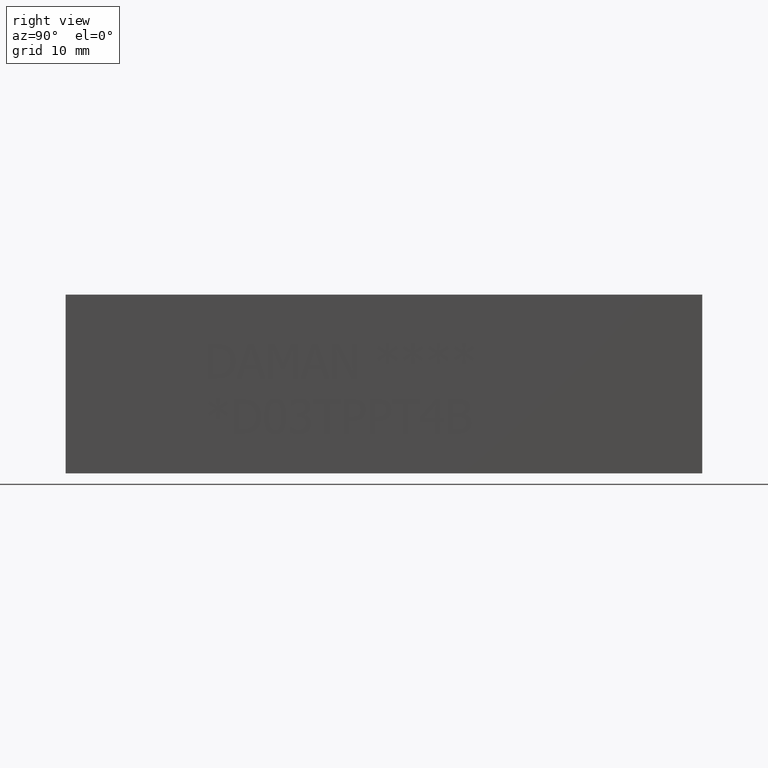
[diagram: clean part render]
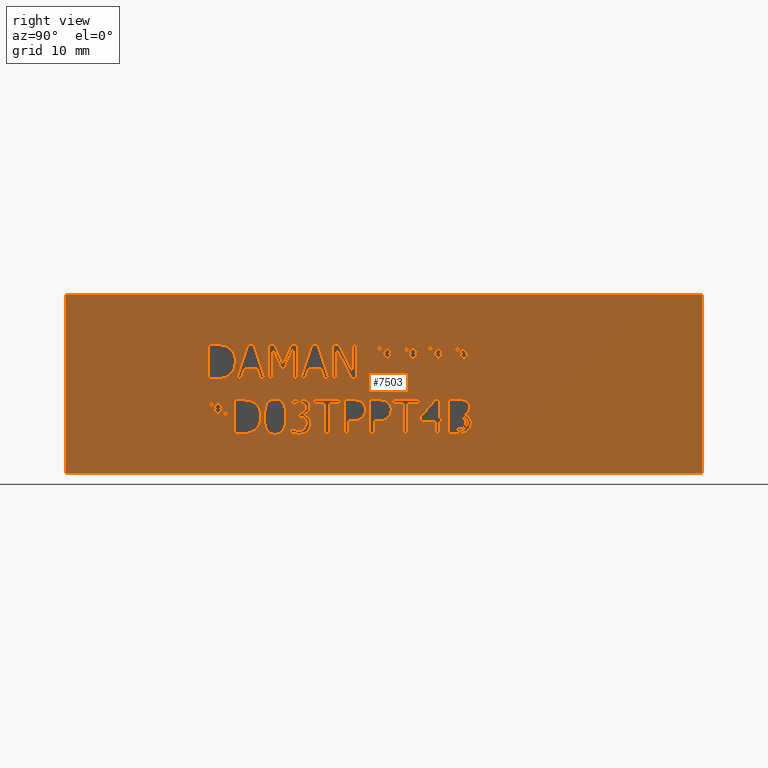
[diagram: same view with one face highlighted and labeled with its STEP entity id]
A machine part, right view. The second image highlights one B-rep face of the part: STEP entity #7503.
In plain terms, the highlighted planar face has unit normal (1, 0, 0).
Its self-contained STEP definition (entity closure, byte-faithful):
#113=FACE_BOUND('',#994,.T.);
#114=FACE_BOUND('',#995,.T.);
#115=FACE_BOUND('',#996,.T.);
#116=FACE_BOUND('',#997,.T.);
#117=FACE_BOUND('',#998,.T.);
#118=FACE_BOUND('',#999,.T.);
#119=FACE_BOUND('',#1000,.T.);
#120=FACE_BOUND('',#1001,.T.);
#121=FACE_BOUND('',#1002,.T.);
#122=FACE_BOUND('',#1003,.T.);
#123=FACE_BOUND('',#1004,.T.);
#124=FACE_BOUND('',#1005,.T.);
#125=FACE_BOUND('',#1006,.T.);
#126=FACE_BOUND('',#1007,.T.);
#127=FACE_BOUND('',#1008,.T.);
#128=FACE_BOUND('',#1009,.T.);
#129=FACE_BOUND('',#1010,.T.);
#130=FACE_BOUND('',#1011,.T.);
#131=FACE_BOUND('',#1012,.T.);
#174=B_SPLINE_CURVE_WITH_KNOTS('',2,(#9820,#9821,#9822,#9823),
 .UNSPECIFIED.,.F.,.F.,(3,1,3),(0.,1.,2.),.UNSPECIFIED.);
#176=B_SPLINE_CURVE_WITH_KNOTS('',2,(#9841,#9842,#9843,#9844),
 .UNSPECIFIED.,.F.,.F.,(3,1,3),(0.,1.,2.),.UNSPECIFIED.);
#178=B_SPLINE_CURVE_WITH_KNOTS('',2,(#9890,#9891,#9892,#9893),
 .UNSPECIFIED.,.F.,.F.,(3,1,3),(0.,1.,2.),.UNSPECIFIED.);
#180=B_SPLINE_CURVE_WITH_KNOTS('',2,(#9908,#9909,#9910,#9911),
 .UNSPECIFIED.,.F.,.F.,(3,1,3),(0.,1.,2.),.UNSPECIFIED.);
#190=B_SPLINE_CURVE_WITH_KNOTS('',2,(#10021,#10022,#10023,#10024),
 .UNSPECIFIED.,.F.,.F.,(3,1,3),(0.,1.,2.),.UNSPECIFIED.);
#192=B_SPLINE_CURVE_WITH_KNOTS('',2,(#10042,#10043,#10044,#10045),
 .UNSPECIFIED.,.F.,.F.,(3,1,3),(0.,1.,2.),.UNSPECIFIED.);
#194=B_SPLINE_CURVE_WITH_KNOTS('',2,(#10091,#10092,#10093,#10094),
 .UNSPECIFIED.,.F.,.F.,(3,1,3),(0.,1.,2.),.UNSPECIFIED.);
#196=B_SPLINE_CURVE_WITH_KNOTS('',2,(#10109,#10110,#10111,#10112),
 .UNSPECIFIED.,.F.,.F.,(3,1,3),(0.,1.,2.),.UNSPECIFIED.);
#198=B_SPLINE_CURVE_WITH_KNOTS('',2,(#10128,#10129,#10130,#10131),
 .UNSPECIFIED.,.F.,.F.,(3,1,3),(0.,1.,2.),.UNSPECIFIED.);
#200=B_SPLINE_CURVE_WITH_KNOTS('',2,(#10149,#10150,#10151,#10152),
 .UNSPECIFIED.,.F.,.F.,(3,1,3),(0.,1.,2.),.UNSPECIFIED.);
#202=B_SPLINE_CURVE_WITH_KNOTS('',2,(#10168,#10169,#10170,#10171),
 .UNSPECIFIED.,.F.,.F.,(3,1,3),(0.,1.,2.),.UNSPECIFIED.);
#204=B_SPLINE_CURVE_WITH_KNOTS('',2,(#10205,#10206,#10207,#10208),
 .UNSPECIFIED.,.F.,.F.,(3,1,3),(0.,1.,2.),.UNSPECIFIED.);
#206=B_SPLINE_CURVE_WITH_KNOTS('',2,(#10224,#10225,#10226,#10227),
 .UNSPECIFIED.,.F.,.F.,(3,1,3),(0.,1.,2.),.UNSPECIFIED.);
#208=B_SPLINE_CURVE_WITH_KNOTS('',2,(#10243,#10244,#10245,#10246),
 .UNSPECIFIED.,.F.,.F.,(3,1,3),(0.,1.,2.),.UNSPECIFIED.);
#210=B_SPLINE_CURVE_WITH_KNOTS('',2,(#10262,#10263,#10264,#10265),
 .UNSPECIFIED.,.F.,.F.,(3,1,3),(0.,1.,2.),.UNSPECIFIED.);
#212=B_SPLINE_CURVE_WITH_KNOTS('',2,(#10281,#10282,#10283,#10284),
 .UNSPECIFIED.,.F.,.F.,(3,1,3),(0.,1.,2.),.UNSPECIFIED.);
#214=B_SPLINE_CURVE_WITH_KNOTS('',2,(#10312,#10313,#10314,#10315),
 .UNSPECIFIED.,.F.,.F.,(3,1,3),(0.,1.,2.),.UNSPECIFIED.);
#216=B_SPLINE_CURVE_WITH_KNOTS('',2,(#10331,#10332,#10333,#10334),
 .UNSPECIFIED.,.F.,.F.,(3,1,3),(0.,1.,2.),.UNSPECIFIED.);
#218=B_SPLINE_CURVE_WITH_KNOTS('',2,(#10350,#10351,#10352,#10353),
 .UNSPECIFIED.,.F.,.F.,(3,1,3),(0.,1.,2.),.UNSPECIFIED.);
#220=B_SPLINE_CURVE_WITH_KNOTS('',2,(#10369,#10370,#10371,#10372),
 .UNSPECIFIED.,.F.,.F.,(3,1,3),(0.,1.,2.),.UNSPECIFIED.);
#222=B_SPLINE_CURVE_WITH_KNOTS('',2,(#10388,#10389,#10390,#10391),
 .UNSPECIFIED.,.F.,.F.,(3,1,3),(0.,1.,2.),.UNSPECIFIED.);
#224=B_SPLINE_CURVE_WITH_KNOTS('',2,(#10413,#10414,#10415,#10416),
 .UNSPECIFIED.,.F.,.F.,(3,1,3),(0.,1.,2.),.UNSPECIFIED.);
#226=B_SPLINE_CURVE_WITH_KNOTS('',2,(#10432,#10433,#10434,#10435),
 .UNSPECIFIED.,.F.,.F.,(3,1,3),(0.,1.,2.),.UNSPECIFIED.);
#228=B_SPLINE_CURVE_WITH_KNOTS('',2,(#10451,#10452,#10453,#10454),
 .UNSPECIFIED.,.F.,.F.,(3,1,3),(0.,1.,2.),.UNSPECIFIED.);
#230=B_SPLINE_CURVE_WITH_KNOTS('',2,(#10470,#10471,#10472,#10473),
 .UNSPECIFIED.,.F.,.F.,(3,1,3),(0.,1.,2.),.UNSPECIFIED.);
#232=B_SPLINE_CURVE_WITH_KNOTS('',2,(#10501,#10502,#10503,#10504),
 .UNSPECIFIED.,.F.,.F.,(3,1,3),(0.,1.,2.),.UNSPECIFIED.);
#234=B_SPLINE_CURVE_WITH_KNOTS('',2,(#10519,#10520,#10521,#10522),
 .UNSPECIFIED.,.F.,.F.,(3,1,3),(0.,1.,2.),.UNSPECIFIED.);
#252=B_SPLINE_CURVE_WITH_KNOTS('',2,(#10690,#10691,#10692,#10693),
 .UNSPECIFIED.,.F.,.F.,(3,1,3),(0.,1.,2.),.UNSPECIFIED.);
#254=B_SPLINE_CURVE_WITH_KNOTS('',2,(#10711,#10712,#10713,#10714),
 .UNSPECIFIED.,.F.,.F.,(3,1,3),(0.,1.,2.),.UNSPECIFIED.);
#256=B_SPLINE_CURVE_WITH_KNOTS('',2,(#10730,#10731,#10732,#10733),
 .UNSPECIFIED.,.F.,.F.,(3,1,3),(0.,1.,2.),.UNSPECIFIED.);
#258=B_SPLINE_CURVE_WITH_KNOTS('',2,(#10748,#10749,#10750,#10751),
 .UNSPECIFIED.,.F.,.F.,(3,1,3),(0.,1.,2.),.UNSPECIFIED.);
#268=B_SPLINE_CURVE_WITH_KNOTS('',2,(#10861,#10862,#10863,#10864),
 .UNSPECIFIED.,.F.,.F.,(3,1,3),(0.,1.,2.),.UNSPECIFIED.);
#270=B_SPLINE_CURVE_WITH_KNOTS('',2,(#10882,#10883,#10884,#10885),
 .UNSPECIFIED.,.F.,.F.,(3,1,3),(0.,1.,2.),.UNSPECIFIED.);
#272=B_SPLINE_CURVE_WITH_KNOTS('',2,(#10919,#10920,#10921,#10922),
 .UNSPECIFIED.,.F.,.F.,(3,1,3),(0.,1.,2.),.UNSPECIFIED.);
#274=B_SPLINE_CURVE_WITH_KNOTS('',2,(#10937,#10938,#10939,#10940),
 .UNSPECIFIED.,.F.,.F.,(3,1,3),(0.,1.,2.),.UNSPECIFIED.);
#292=B_SPLINE_CURVE_WITH_KNOTS('',2,(#11387,#11388,#11389,#11390),
 .UNSPECIFIED.,.F.,.F.,(3,1,3),(0.,1.,2.),.UNSPECIFIED.);
#294=B_SPLINE_CURVE_WITH_KNOTS('',2,(#11414,#11415,#11416,#11417),
 .UNSPECIFIED.,.F.,.F.,(3,1,3),(0.,1.,2.),.UNSPECIFIED.);
#296=B_SPLINE_CURVE_WITH_KNOTS('',2,(#11433,#11434,#11435,#11436),
 .UNSPECIFIED.,.F.,.F.,(3,1,3),(0.,1.,2.),.UNSPECIFIED.);
#298=B_SPLINE_CURVE_WITH_KNOTS('',2,(#11452,#11453,#11454,#11455),
 .UNSPECIFIED.,.F.,.F.,(3,1,3),(0.,1.,2.),.UNSPECIFIED.);
#300=B_SPLINE_CURVE_WITH_KNOTS('',2,(#11489,#11490,#11491,#11492),
 .UNSPECIFIED.,.F.,.F.,(3,1,3),(0.,1.,2.),.UNSPECIFIED.);
#302=B_SPLINE_CURVE_WITH_KNOTS('',2,(#11507,#11508,#11509,#11510),
 .UNSPECIFIED.,.F.,.F.,(3,1,3),(0.,1.,2.),.UNSPECIFIED.);
#304=B_SPLINE_CURVE_WITH_KNOTS('',2,(#11641,#11642,#11643,#11644),
 .UNSPECIFIED.,.F.,.F.,(3,1,3),(0.,1.,2.),.UNSPECIFIED.);
#305=B_SPLINE_CURVE_WITH_KNOTS('',2,(#11646,#11647,#11648,#11649),
 .UNSPECIFIED.,.F.,.F.,(3,1,3),(0.,1.,2.),.UNSPECIFIED.);
#306=B_SPLINE_CURVE_WITH_KNOTS('',2,(#11651,#11652,#11653,#11654),
 .UNSPECIFIED.,.F.,.F.,(3,1,3),(0.,1.,2.),.UNSPECIFIED.);
#307=B_SPLINE_CURVE_WITH_KNOTS('',2,(#11661,#11662,#11663,#11664),
 .UNSPECIFIED.,.F.,.F.,(3,1,3),(0.,1.,2.),.UNSPECIFIED.);
#588=FACE_OUTER_BOUND('',#993,.T.);
#993=EDGE_LOOP('',(#5434,#5435,#5436,#5437));
#994=EDGE_LOOP('',(#5438,#5439,#5440,#5441,#5442,#5443,#5444,#5445,#5446,
#5447,#5448,#5449,#5450,#5451,#5452,#5453,#5454,#5455));
#995=EDGE_LOOP('',(#5456,#5457,#5458,#5459,#5460,#5461,#5462,#5463,#5464,
#5465,#5466,#5467,#5468,#5469,#5470,#5471,#5472,#5473));
#996=EDGE_LOOP('',(#5474,#5475,#5476,#5477,#5478,#5479,#5480,#5481,#5482,
#5483,#5484,#5485,#5486));
#997=EDGE_LOOP('',(#5487,#5488,#5489,#5490,#5491,#5492,#5493,#5494));
#998=EDGE_LOOP('',(#5495,#5496,#5497,#5498,#5499,#5500,#5501));
#999=EDGE_LOOP('',(#5502,#5503,#5504,#5505,#5506,#5507,#5508,#5509));
#1000=EDGE_LOOP('',(#5510,#5511,#5512,#5513,#5514,#5515,#5516,#5517,#5518,
#5519));
#1001=EDGE_LOOP('',(#5520,#5521,#5522,#5523,#5524,#5525,#5526,#5527,#5528,
#5529,#5530,#5531,#5532,#5533,#5534,#5535,#5536,#5537));
#1002=EDGE_LOOP('',(#5538,#5539,#5540,#5541,#5542,#5543,#5544,#5545,#5546,
#5547,#5548,#5549,#5550,#5551,#5552,#5553,#5554,#5555));
#1003=EDGE_LOOP('',(#5556,#5557,#5558,#5559,#5560,#5561,#5562,#5563,#5564,
#5565));
#1004=EDGE_LOOP('',(#5566,#5567,#5568,#5569,#5570,#5571,#5572,#5573,#5574,
#5575,#5576));
#1005=EDGE_LOOP('',(#5577,#5578,#5579,#5580,#5581,#5582,#5583,#5584));
#1006=EDGE_LOOP('',(#5585,#5586,#5587,#5588,#5589,#5590,#5591,#5592,#5593,
#5594,#5595,#5596,#5597,#5598,#5599,#5600,#5601,#5602));
#1007=EDGE_LOOP('',(#5603,#5604,#5605,#5606,#5607,#5608,#5609));
#1008=EDGE_LOOP('',(#5610,#5611,#5612,#5613));
#1009=EDGE_LOOP('',(#5614,#5615,#5616,#5617,#5618,#5619,#5620,#5621,#5622,
#5623,#5624,#5625,#5626,#5627,#5628,#5629,#5630,#5631,#5632,#5633,#5634,
#5635,#5636,#5637,#5638,#5639,#5640));
#1010=EDGE_LOOP('',(#5641,#5642,#5643,#5644,#5645,#5646,#5647,#5648,#5649));
#1011=EDGE_LOOP('',(#5650,#5651,#5652,#5653,#5654,#5655,#5656,#5657,#5658));
#1012=EDGE_LOOP('',(#5659,#5660,#5661,#5662,#5663,#5664,#5665,#5666));
#1277=LINE('',#9670,#2095);
#1281=LINE('',#9678,#2099);
#1284=LINE('',#9684,#2102);
#1287=LINE('',#9690,#2105);
#1290=LINE('',#9696,#2108);
#1293=LINE('',#9702,#2111);
#1296=LINE('',#9708,#2114);
#1299=LINE('',#9713,#2117);
#1317=LINE('',#9853,#2135);
#1320=LINE('',#9859,#2138);
#1323=LINE('',#9865,#2141);
#1326=LINE('',#9871,#2144);
#1329=LINE('',#9877,#2147);
#1349=LINE('',#10054,#2167);
#1352=LINE('',#10060,#2170);
#1355=LINE('',#10066,#2173);
#1358=LINE('',#10072,#2176);
#1361=LINE('',#10078,#2179);
#1369=LINE('',#10180,#2187);
#1372=LINE('',#10186,#2190);
#1375=LINE('',#10192,#2193);
#1383=LINE('',#10293,#2201);
#1386=LINE('',#10299,#2204);
#1394=LINE('',#10400,#2212);
#1401=LINE('',#10482,#2219);
#1404=LINE('',#10488,#2222);
#1436=LINE('',#10894,#2254);
#1439=LINE('',#10900,#2257);
#1442=LINE('',#10906,#2260);
#1446=LINE('',#10949,#2264);
#1450=LINE('',#10957,#2268);
#1453=LINE('',#10963,#2271);
#1456=LINE('',#10969,#2274);
#1459=LINE('',#10975,#2277);
#1462=LINE('',#10981,#2280);
#1465=LINE('',#10987,#2283);
#1468=LINE('',#10993,#2286);
#1471=LINE('',#10999,#2289);
#1474=LINE('',#11005,#2292);
#1477=LINE('',#11011,#2295);
#1480=LINE('',#11017,#2298);
#1483=LINE('',#11023,#2301);
#1486=LINE('',#11029,#2304);
#1489=LINE('',#11035,#2307);
#1492=LINE('',#11041,#2310);
#1495=LINE('',#11047,#2313);
#1498=LINE('',#11052,#2316);
#1500=LINE('',#11058,#2318);
#1504=LINE('',#11066,#2322);
#1507=LINE('',#11072,#2325);
#1510=LINE('',#11078,#2328);
#1513=LINE('',#11084,#2331);
#1516=LINE('',#11090,#2334);
#1519=LINE('',#11096,#2337);
#1522=LINE('',#11101,#2340);
#1533=LINE('',#11125,#2351);
#1537=LINE('',#11133,#2355);
#1540=LINE('',#11139,#2358);
#1543=LINE('',#11145,#2361);
#1546=LINE('',#11151,#2364);
#1549=LINE('',#11157,#2367);
#1552=LINE('',#11163,#2370);
#1555=LINE('',#11169,#2373);
#1558=LINE('',#11175,#2376);
#1561=LINE('',#11181,#2379);
#1564=LINE('',#11186,#2382);
#1594=LINE('',#11401,#2412);
#1600=LINE('',#11464,#2418);
#1603=LINE('',#11470,#2421);
#1606=LINE('',#11476,#2424);
#1610=LINE('',#11519,#2428);
#1611=LINE('',#11521,#2429);
#1612=LINE('',#11523,#2430);
#1613=LINE('',#11524,#2431);
#1614=LINE('',#11527,#2432);
#1615=LINE('',#11529,#2433);
#1616=LINE('',#11531,#2434);
#1617=LINE('',#11533,#2435);
#1618=LINE('',#11535,#2436);
#1619=LINE('',#11537,#2437);
#1620=LINE('',#11539,#2438);
#1621=LINE('',#11541,#2439);
#1622=LINE('',#11543,#2440);
#1623=LINE('',#11545,#2441);
#1624=LINE('',#11547,#2442);
#1625=LINE('',#11549,#2443);
#1626=LINE('',#11551,#2444);
#1627=LINE('',#11553,#2445);
#1628=LINE('',#11555,#2446);
#1629=LINE('',#11557,#2447);
#1630=LINE('',#11559,#2448);
#1631=LINE('',#11560,#2449);
#1632=LINE('',#11563,#2450);
#1633=LINE('',#11565,#2451);
#1634=LINE('',#11567,#2452);
#1635=LINE('',#11569,#2453);
#1636=LINE('',#11571,#2454);
#1637=LINE('',#11573,#2455);
#1638=LINE('',#11575,#2456);
#1639=LINE('',#11577,#2457);
#1640=LINE('',#11579,#2458);
#1641=LINE('',#11581,#2459);
#1642=LINE('',#11583,#2460);
#1643=LINE('',#11585,#2461);
#1644=LINE('',#11587,#2462);
#1645=LINE('',#11589,#2463);
#1646=LINE('',#11591,#2464);
#1647=LINE('',#11593,#2465);
#1648=LINE('',#11595,#2466);
#1649=LINE('',#11596,#2467);
#1650=LINE('',#11599,#2468);
#1651=LINE('',#11601,#2469);
#1652=LINE('',#11603,#2470);
#1653=LINE('',#11605,#2471);
#1654=LINE('',#11607,#2472);
#1655=LINE('',#11609,#2473);
#1656=LINE('',#11611,#2474);
#1657=LINE('',#11613,#2475);
#1658=LINE('',#11615,#2476);
#1659=LINE('',#11617,#2477);
#1660=LINE('',#11619,#2478);
#1661=LINE('',#11621,#2479);
#1662=LINE('',#11622,#2480);
#1663=LINE('',#11625,#2481);
#1664=LINE('',#11627,#2482);
#1665=LINE('',#11629,#2483);
#1666=LINE('',#11631,#2484);
#1667=LINE('',#11633,#2485);
#1668=LINE('',#11635,#2486);
#1669=LINE('',#11637,#2487);
#1670=LINE('',#11638,#2488);
#1671=LINE('',#11656,#2489);
#1672=LINE('',#11658,#2490);
#1673=LINE('',#11660,#2491);
#1674=LINE('',#11667,#2492);
#1675=LINE('',#11669,#2493);
#1676=LINE('',#11671,#2494);
#1677=LINE('',#11673,#2495);
#1678=LINE('',#11675,#2496);
#1679=LINE('',#11677,#2497);
#1680=LINE('',#11679,#2498);
#1681=LINE('',#11680,#2499);
#1682=LINE('',#11683,#2500);
#1683=LINE('',#11685,#2501);
#1684=LINE('',#11687,#2502);
#1685=LINE('',#11689,#2503);
#1686=LINE('',#11691,#2504);
#1687=LINE('',#11693,#2505);
#1688=LINE('',#11695,#2506);
#1689=LINE('',#11697,#2507);
#1690=LINE('',#11699,#2508);
#1691=LINE('',#11700,#2509);
#1692=LINE('',#11703,#2510);
#1693=LINE('',#11705,#2511);
#1694=LINE('',#11707,#2512);
#1695=LINE('',#11709,#2513);
#1696=LINE('',#11711,#2514);
#1697=LINE('',#11713,#2515);
#1698=LINE('',#11715,#2516);
#1699=LINE('',#11717,#2517);
#1700=LINE('',#11719,#2518);
#1701=LINE('',#11721,#2519);
#1702=LINE('',#11723,#2520);
#1703=LINE('',#11725,#2521);
#1704=LINE('',#11727,#2522);
#1705=LINE('',#11729,#2523);
#1706=LINE('',#11731,#2524);
#1707=LINE('',#11733,#2525);
#1708=LINE('',#11735,#2526);
#1709=LINE('',#11736,#2527);
#1710=LINE('',#11739,#2528);
#1711=LINE('',#11741,#2529);
#1712=LINE('',#11743,#2530);
#1713=LINE('',#11745,#2531);
#1714=LINE('',#11747,#2532);
#1715=LINE('',#11749,#2533);
#1716=LINE('',#11751,#2534);
#1717=LINE('',#11753,#2535);
#1718=LINE('',#11755,#2536);
#1719=LINE('',#11757,#2537);
#1720=LINE('',#11759,#2538);
#1721=LINE('',#11761,#2539);
#1722=LINE('',#11763,#2540);
#1723=LINE('',#11765,#2541);
#1724=LINE('',#11767,#2542);
#1725=LINE('',#11769,#2543);
#1726=LINE('',#11771,#2544);
#1727=LINE('',#11772,#2545);
#2095=VECTOR('',#8120,10.);
#2099=VECTOR('',#8126,10.);
#2102=VECTOR('',#8131,10.);
#2105=VECTOR('',#8136,10.);
#2108=VECTOR('',#8141,10.);
#2111=VECTOR('',#8146,10.);
#2114=VECTOR('',#8151,10.);
#2117=VECTOR('',#8156,10.);
#2135=VECTOR('',#8184,10.);
#2138=VECTOR('',#8189,10.);
#2141=VECTOR('',#8194,10.);
#2144=VECTOR('',#8199,10.);
#2147=VECTOR('',#8204,10.);
#2167=VECTOR('',#8234,10.);
#2170=VECTOR('',#8239,10.);
#2173=VECTOR('',#8244,10.);
#2176=VECTOR('',#8249,10.);
#2179=VECTOR('',#8254,10.);
#2187=VECTOR('',#8266,10.);
#2190=VECTOR('',#8271,10.);
#2193=VECTOR('',#8276,10.);
#2201=VECTOR('',#8286,10.);
#2204=VECTOR('',#8291,10.);
#2212=VECTOR('',#8301,10.);
#2219=VECTOR('',#8310,10.);
#2222=VECTOR('',#8315,10.);
#2254=VECTOR('',#8359,10.);
#2257=VECTOR('',#8364,10.);
#2260=VECTOR('',#8369,10.);
#2264=VECTOR('',#8377,10.);
#2268=VECTOR('',#8383,10.);
#2271=VECTOR('',#8388,10.);
#2274=VECTOR('',#8393,10.);
#2277=VECTOR('',#8398,10.);
#2280=VECTOR('',#8403,10.);
#2283=VECTOR('',#8408,10.);
#2286=VECTOR('',#8413,10.);
#2289=VECTOR('',#8418,10.);
#2292=VECTOR('',#8423,10.);
#2295=VECTOR('',#8428,10.);
#2298=VECTOR('',#8433,10.);
#2301=VECTOR('',#8438,10.);
#2304=VECTOR('',#8443,10.);
#2307=VECTOR('',#8448,10.);
#2310=VECTOR('',#8453,10.);
#2313=VECTOR('',#8458,10.);
#2316=VECTOR('',#8463,10.);
#2318=VECTOR('',#8469,10.);
#2322=VECTOR('',#8475,10.);
#2325=VECTOR('',#8480,10.);
#2328=VECTOR('',#8485,10.);
#2331=VECTOR('',#8490,10.);
#2334=VECTOR('',#8495,10.);
#2337=VECTOR('',#8500,10.);
#2340=VECTOR('',#8505,10.);
#2351=VECTOR('',#8526,10.);
#2355=VECTOR('',#8532,10.);
#2358=VECTOR('',#8537,10.);
#2361=VECTOR('',#8542,10.);
#2364=VECTOR('',#8547,10.);
#2367=VECTOR('',#8552,10.);
#2370=VECTOR('',#8557,10.);
#2373=VECTOR('',#8562,10.);
#2376=VECTOR('',#8567,10.);
#2379=VECTOR('',#8572,10.);
#2382=VECTOR('',#8577,10.);
#2412=VECTOR('',#8623,10.);
#2418=VECTOR('',#8631,10.);
#2421=VECTOR('',#8636,10.);
#2424=VECTOR('',#8641,10.);
#2428=VECTOR('',#8649,10.);
#2429=VECTOR('',#8650,10.);
#2430=VECTOR('',#8651,10.);
#2431=VECTOR('',#8652,10.);
#2432=VECTOR('',#8653,10.);
#2433=VECTOR('',#8654,10.);
#2434=VECTOR('',#8655,10.);
#2435=VECTOR('',#8656,10.);
#2436=VECTOR('',#8657,10.);
#2437=VECTOR('',#8658,10.);
#2438=VECTOR('',#8659,10.);
#2439=VECTOR('',#8660,10.);
#2440=VECTOR('',#8661,10.);
#2441=VECTOR('',#8662,10.);
#2442=VECTOR('',#8663,10.);
#2443=VECTOR('',#8664,10.);
#2444=VECTOR('',#8665,10.);
#2445=VECTOR('',#8666,10.);
#2446=VECTOR('',#8667,10.);
#2447=VECTOR('',#8668,10.);
#2448=VECTOR('',#8669,10.);
#2449=VECTOR('',#8670,10.);
#2450=VECTOR('',#8671,10.);
#2451=VECTOR('',#8672,10.);
#2452=VECTOR('',#8673,10.);
#2453=VECTOR('',#8674,10.);
#2454=VECTOR('',#8675,10.);
#2455=VECTOR('',#8676,10.);
#2456=VECTOR('',#8677,10.);
#2457=VECTOR('',#8678,10.);
#2458=VECTOR('',#8679,10.);
#2459=VECTOR('',#8680,10.);
#2460=VECTOR('',#8681,10.);
#2461=VECTOR('',#8682,10.);
#2462=VECTOR('',#8683,10.);
#2463=VECTOR('',#8684,10.);
#2464=VECTOR('',#8685,10.);
#2465=VECTOR('',#8686,10.);
#2466=VECTOR('',#8687,10.);
#2467=VECTOR('',#8688,10.);
#2468=VECTOR('',#8689,10.);
#2469=VECTOR('',#8690,10.);
#2470=VECTOR('',#8691,10.);
#2471=VECTOR('',#8692,10.);
#2472=VECTOR('',#8693,10.);
#2473=VECTOR('',#8694,10.);
#2474=VECTOR('',#8695,10.);
#2475=VECTOR('',#8696,10.);
#2476=VECTOR('',#8697,10.);
#2477=VECTOR('',#8698,10.);
#2478=VECTOR('',#8699,10.);
#2479=VECTOR('',#8700,10.);
#2480=VECTOR('',#8701,10.);
#2481=VECTOR('',#8702,10.);
#2482=VECTOR('',#8703,10.);
#2483=VECTOR('',#8704,10.);
#2484=VECTOR('',#8705,10.);
#2485=VECTOR('',#8706,10.);
#2486=VECTOR('',#8707,10.);
#2487=VECTOR('',#8708,10.);
#2488=VECTOR('',#8709,10.);
#2489=VECTOR('',#8710,10.);
#2490=VECTOR('',#8711,10.);
#2491=VECTOR('',#8712,10.);
#2492=VECTOR('',#8713,10.);
#2493=VECTOR('',#8714,10.);
#2494=VECTOR('',#8715,10.);
#2495=VECTOR('',#8716,10.);
#2496=VECTOR('',#8717,10.);
#2497=VECTOR('',#8718,10.);
#2498=VECTOR('',#8719,10.);
#2499=VECTOR('',#8720,10.);
#2500=VECTOR('',#8721,10.);
#2501=VECTOR('',#8722,10.);
#2502=VECTOR('',#8723,10.);
#2503=VECTOR('',#8724,10.);
#2504=VECTOR('',#8725,10.);
#2505=VECTOR('',#8726,10.);
#2506=VECTOR('',#8727,10.);
#2507=VECTOR('',#8728,10.);
#2508=VECTOR('',#8729,10.);
#2509=VECTOR('',#8730,10.);
#2510=VECTOR('',#8731,10.);
#2511=VECTOR('',#8732,10.);
#2512=VECTOR('',#8733,10.);
#2513=VECTOR('',#8734,10.);
#2514=VECTOR('',#8735,10.);
#2515=VECTOR('',#8736,10.);
#2516=VECTOR('',#8737,10.);
#2517=VECTOR('',#8738,10.);
#2518=VECTOR('',#8739,10.);
#2519=VECTOR('',#8740,10.);
#2520=VECTOR('',#8741,10.);
#2521=VECTOR('',#8742,10.);
#2522=VECTOR('',#8743,10.);
#2523=VECTOR('',#8744,10.);
#2524=VECTOR('',#8745,10.);
#2525=VECTOR('',#8746,10.);
#2526=VECTOR('',#8747,10.);
#2527=VECTOR('',#8748,10.);
#2528=VECTOR('',#8749,10.);
#2529=VECTOR('',#8750,10.);
#2530=VECTOR('',#8751,10.);
#2531=VECTOR('',#8752,10.);
#2532=VECTOR('',#8753,10.);
#2533=VECTOR('',#8754,10.);
#2534=VECTOR('',#8755,10.);
#2535=VECTOR('',#8756,10.);
#2536=VECTOR('',#8757,10.);
#2537=VECTOR('',#8758,10.);
#2538=VECTOR('',#8759,10.);
#2539=VECTOR('',#8760,10.);
#2540=VECTOR('',#8761,10.);
#2541=VECTOR('',#8762,10.);
#2542=VECTOR('',#8763,10.);
#2543=VECTOR('',#8764,10.);
#2544=VECTOR('',#8765,10.);
#2545=VECTOR('',#8766,10.);
#2913=VERTEX_POINT('',#9668);
#2914=VERTEX_POINT('',#9669);
#2917=VERTEX_POINT('',#9677);
#2919=VERTEX_POINT('',#9683);
#2921=VERTEX_POINT('',#9689);
#2923=VERTEX_POINT('',#9695);
#2925=VERTEX_POINT('',#9701);
#2927=VERTEX_POINT('',#9707);
#2943=VERTEX_POINT('',#9818);
#2944=VERTEX_POINT('',#9819);
#2947=VERTEX_POINT('',#9840);
#2949=VERTEX_POINT('',#9852);
#2951=VERTEX_POINT('',#9858);
#2953=VERTEX_POINT('',#9864);
#2955=VERTEX_POINT('',#9870);
#2957=VERTEX_POINT('',#9876);
#2959=VERTEX_POINT('',#9889);
#2975=VERTEX_POINT('',#10019);
#2976=VERTEX_POINT('',#10020);
#2979=VERTEX_POINT('',#10041);
#2981=VERTEX_POINT('',#10053);
#2983=VERTEX_POINT('',#10059);
#2985=VERTEX_POINT('',#10065);
#2987=VERTEX_POINT('',#10071);
#2989=VERTEX_POINT('',#10077);
#2991=VERTEX_POINT('',#10090);
#2993=VERTEX_POINT('',#10126);
#2994=VERTEX_POINT('',#10127);
#2997=VERTEX_POINT('',#10148);
#2999=VERTEX_POINT('',#10167);
#3001=VERTEX_POINT('',#10179);
#3003=VERTEX_POINT('',#10185);
#3005=VERTEX_POINT('',#10191);
#3007=VERTEX_POINT('',#10204);
#3009=VERTEX_POINT('',#10223);
#3011=VERTEX_POINT('',#10242);
#3013=VERTEX_POINT('',#10261);
#3015=VERTEX_POINT('',#10280);
#3017=VERTEX_POINT('',#10292);
#3019=VERTEX_POINT('',#10298);
#3021=VERTEX_POINT('',#10311);
#3023=VERTEX_POINT('',#10330);
#3025=VERTEX_POINT('',#10349);
#3027=VERTEX_POINT('',#10368);
#3029=VERTEX_POINT('',#10387);
#3031=VERTEX_POINT('',#10399);
#3033=VERTEX_POINT('',#10412);
#3035=VERTEX_POINT('',#10431);
#3037=VERTEX_POINT('',#10450);
#3039=VERTEX_POINT('',#10469);
#3041=VERTEX_POINT('',#10481);
#3043=VERTEX_POINT('',#10487);
#3045=VERTEX_POINT('',#10500);
#3063=VERTEX_POINT('',#10688);
#3064=VERTEX_POINT('',#10689);
#3067=VERTEX_POINT('',#10710);
#3069=VERTEX_POINT('',#10729);
#3085=VERTEX_POINT('',#10859);
#3086=VERTEX_POINT('',#10860);
#3089=VERTEX_POINT('',#10881);
#3091=VERTEX_POINT('',#10893);
#3093=VERTEX_POINT('',#10899);
#3095=VERTEX_POINT('',#10905);
#3097=VERTEX_POINT('',#10918);
#3099=VERTEX_POINT('',#10947);
#3100=VERTEX_POINT('',#10948);
#3103=VERTEX_POINT('',#10956);
#3105=VERTEX_POINT('',#10962);
#3107=VERTEX_POINT('',#10968);
#3109=VERTEX_POINT('',#10974);
#3111=VERTEX_POINT('',#10980);
#3113=VERTEX_POINT('',#10986);
#3115=VERTEX_POINT('',#10992);
#3117=VERTEX_POINT('',#10998);
#3119=VERTEX_POINT('',#11004);
#3121=VERTEX_POINT('',#11010);
#3123=VERTEX_POINT('',#11016);
#3125=VERTEX_POINT('',#11022);
#3127=VERTEX_POINT('',#11028);
#3129=VERTEX_POINT('',#11034);
#3131=VERTEX_POINT('',#11040);
#3133=VERTEX_POINT('',#11046);
#3135=VERTEX_POINT('',#11056);
#3136=VERTEX_POINT('',#11057);
#3139=VERTEX_POINT('',#11065);
#3141=VERTEX_POINT('',#11071);
#3143=VERTEX_POINT('',#11077);
#3145=VERTEX_POINT('',#11083);
#3147=VERTEX_POINT('',#11089);
#3149=VERTEX_POINT('',#11095);
#3157=VERTEX_POINT('',#11123);
#3158=VERTEX_POINT('',#11124);
#3161=VERTEX_POINT('',#11132);
#3163=VERTEX_POINT('',#11138);
#3165=VERTEX_POINT('',#11144);
#3167=VERTEX_POINT('',#11150);
#3169=VERTEX_POINT('',#11156);
#3171=VERTEX_POINT('',#11162);
#3173=VERTEX_POINT('',#11168);
#3175=VERTEX_POINT('',#11174);
#3177=VERTEX_POINT('',#11180);
#3207=VERTEX_POINT('',#11385);
#3208=VERTEX_POINT('',#11386);
#3211=VERTEX_POINT('',#11400);
#3213=VERTEX_POINT('',#11413);
#3215=VERTEX_POINT('',#11432);
#3217=VERTEX_POINT('',#11451);
#3219=VERTEX_POINT('',#11463);
#3221=VERTEX_POINT('',#11469);
#3223=VERTEX_POINT('',#11475);
#3225=VERTEX_POINT('',#11488);
#3227=VERTEX_POINT('',#11517);
#3228=VERTEX_POINT('',#11518);
#3229=VERTEX_POINT('',#11520);
#3230=VERTEX_POINT('',#11522);
#3231=VERTEX_POINT('',#11525);
#3232=VERTEX_POINT('',#11526);
#3233=VERTEX_POINT('',#11528);
#3234=VERTEX_POINT('',#11530);
#3235=VERTEX_POINT('',#11532);
#3236=VERTEX_POINT('',#11534);
#3237=VERTEX_POINT('',#11536);
#3238=VERTEX_POINT('',#11538);
#3239=VERTEX_POINT('',#11540);
#3240=VERTEX_POINT('',#11542);
#3241=VERTEX_POINT('',#11544);
#3242=VERTEX_POINT('',#11546);
#3243=VERTEX_POINT('',#11548);
#3244=VERTEX_POINT('',#11550);
#3245=VERTEX_POINT('',#11552);
#3246=VERTEX_POINT('',#11554);
#3247=VERTEX_POINT('',#11556);
#3248=VERTEX_POINT('',#11558);
#3249=VERTEX_POINT('',#11561);
#3250=VERTEX_POINT('',#11562);
#3251=VERTEX_POINT('',#11564);
#3252=VERTEX_POINT('',#11566);
#3253=VERTEX_POINT('',#11568);
#3254=VERTEX_POINT('',#11570);
#3255=VERTEX_POINT('',#11572);
#3256=VERTEX_POINT('',#11574);
#3257=VERTEX_POINT('',#11576);
#3258=VERTEX_POINT('',#11578);
#3259=VERTEX_POINT('',#11580);
#3260=VERTEX_POINT('',#11582);
#3261=VERTEX_POINT('',#11584);
#3262=VERTEX_POINT('',#11586);
#3263=VERTEX_POINT('',#11588);
#3264=VERTEX_POINT('',#11590);
#3265=VERTEX_POINT('',#11592);
#3266=VERTEX_POINT('',#11594);
#3267=VERTEX_POINT('',#11597);
#3268=VERTEX_POINT('',#11598);
#3269=VERTEX_POINT('',#11600);
#3270=VERTEX_POINT('',#11602);
#3271=VERTEX_POINT('',#11604);
#3272=VERTEX_POINT('',#11606);
#3273=VERTEX_POINT('',#11608);
#3274=VERTEX_POINT('',#11610);
#3275=VERTEX_POINT('',#11612);
#3276=VERTEX_POINT('',#11614);
#3277=VERTEX_POINT('',#11616);
#3278=VERTEX_POINT('',#11618);
#3279=VERTEX_POINT('',#11620);
#3280=VERTEX_POINT('',#11623);
#3281=VERTEX_POINT('',#11624);
#3282=VERTEX_POINT('',#11626);
#3283=VERTEX_POINT('',#11628);
#3284=VERTEX_POINT('',#11630);
#3285=VERTEX_POINT('',#11632);
#3286=VERTEX_POINT('',#11634);
#3287=VERTEX_POINT('',#11636);
#3288=VERTEX_POINT('',#11639);
#3289=VERTEX_POINT('',#11640);
#3290=VERTEX_POINT('',#11645);
#3291=VERTEX_POINT('',#11650);
#3292=VERTEX_POINT('',#11655);
#3293=VERTEX_POINT('',#11657);
#3294=VERTEX_POINT('',#11659);
#3295=VERTEX_POINT('',#11665);
#3296=VERTEX_POINT('',#11666);
#3297=VERTEX_POINT('',#11668);
#3298=VERTEX_POINT('',#11670);
#3299=VERTEX_POINT('',#11672);
#3300=VERTEX_POINT('',#11674);
#3301=VERTEX_POINT('',#11676);
#3302=VERTEX_POINT('',#11678);
#3303=VERTEX_POINT('',#11681);
#3304=VERTEX_POINT('',#11682);
#3305=VERTEX_POINT('',#11684);
#3306=VERTEX_POINT('',#11686);
#3307=VERTEX_POINT('',#11688);
#3308=VERTEX_POINT('',#11690);
#3309=VERTEX_POINT('',#11692);
#3310=VERTEX_POINT('',#11694);
#3311=VERTEX_POINT('',#11696);
#3312=VERTEX_POINT('',#11698);
#3313=VERTEX_POINT('',#11701);
#3314=VERTEX_POINT('',#11702);
#3315=VERTEX_POINT('',#11704);
#3316=VERTEX_POINT('',#11706);
#3317=VERTEX_POINT('',#11708);
#3318=VERTEX_POINT('',#11710);
#3319=VERTEX_POINT('',#11712);
#3320=VERTEX_POINT('',#11714);
#3321=VERTEX_POINT('',#11716);
#3322=VERTEX_POINT('',#11718);
#3323=VERTEX_POINT('',#11720);
#3324=VERTEX_POINT('',#11722);
#3325=VERTEX_POINT('',#11724);
#3326=VERTEX_POINT('',#11726);
#3327=VERTEX_POINT('',#11728);
#3328=VERTEX_POINT('',#11730);
#3329=VERTEX_POINT('',#11732);
#3330=VERTEX_POINT('',#11734);
#3331=VERTEX_POINT('',#11737);
#3332=VERTEX_POINT('',#11738);
#3333=VERTEX_POINT('',#11740);
#3334=VERTEX_POINT('',#11742);
#3335=VERTEX_POINT('',#11744);
#3336=VERTEX_POINT('',#11746);
#3337=VERTEX_POINT('',#11748);
#3338=VERTEX_POINT('',#11750);
#3339=VERTEX_POINT('',#11752);
#3340=VERTEX_POINT('',#11754);
#3341=VERTEX_POINT('',#11756);
#3342=VERTEX_POINT('',#11758);
#3343=VERTEX_POINT('',#11760);
#3344=VERTEX_POINT('',#11762);
#3345=VERTEX_POINT('',#11764);
#3346=VERTEX_POINT('',#11766);
#3347=VERTEX_POINT('',#11768);
#3348=VERTEX_POINT('',#11770);
#3609=EDGE_CURVE('',#2913,#2914,#1277,.T.);
#3613=EDGE_CURVE('',#2917,#2913,#1281,.T.);
#3616=EDGE_CURVE('',#2919,#2917,#1284,.T.);
#3619=EDGE_CURVE('',#2921,#2919,#1287,.T.);
#3622=EDGE_CURVE('',#2923,#2921,#1290,.T.);
#3625=EDGE_CURVE('',#2925,#2923,#1293,.T.);
#3628=EDGE_CURVE('',#2927,#2925,#1296,.T.);
#3631=EDGE_CURVE('',#2914,#2927,#1299,.T.);
#3654=EDGE_CURVE('',#2943,#2944,#174,.T.);
#3658=EDGE_CURVE('',#2947,#2943,#176,.T.);
#3661=EDGE_CURVE('',#2949,#2947,#1317,.T.);
#3664=EDGE_CURVE('',#2951,#2949,#1320,.T.);
#3667=EDGE_CURVE('',#2953,#2951,#1323,.T.);
#3670=EDGE_CURVE('',#2955,#2953,#1326,.T.);
#3673=EDGE_CURVE('',#2957,#2955,#1329,.T.);
#3676=EDGE_CURVE('',#2959,#2957,#178,.T.);
#3679=EDGE_CURVE('',#2944,#2959,#180,.T.);
#3702=EDGE_CURVE('',#2975,#2976,#190,.T.);
#3706=EDGE_CURVE('',#2979,#2975,#192,.T.);
#3709=EDGE_CURVE('',#2981,#2979,#1349,.T.);
#3712=EDGE_CURVE('',#2983,#2981,#1352,.T.);
#3715=EDGE_CURVE('',#2985,#2983,#1355,.T.);
#3718=EDGE_CURVE('',#2987,#2985,#1358,.T.);
#3721=EDGE_CURVE('',#2989,#2987,#1361,.T.);
#3724=EDGE_CURVE('',#2991,#2989,#194,.T.);
#3727=EDGE_CURVE('',#2976,#2991,#196,.T.);
#3729=EDGE_CURVE('',#2993,#2994,#198,.T.);
#3733=EDGE_CURVE('',#2997,#2993,#200,.T.);
#3736=EDGE_CURVE('',#2999,#2997,#202,.T.);
#3739=EDGE_CURVE('',#3001,#2999,#1369,.T.);
#3742=EDGE_CURVE('',#3003,#3001,#1372,.T.);
#3745=EDGE_CURVE('',#3005,#3003,#1375,.T.);
#3748=EDGE_CURVE('',#3007,#3005,#204,.T.);
#3751=EDGE_CURVE('',#3009,#3007,#206,.T.);
#3754=EDGE_CURVE('',#3011,#3009,#208,.T.);
#3757=EDGE_CURVE('',#3013,#3011,#210,.T.);
#3760=EDGE_CURVE('',#3015,#3013,#212,.T.);
#3763=EDGE_CURVE('',#3017,#3015,#1383,.T.);
#3766=EDGE_CURVE('',#3019,#3017,#1386,.T.);
#3769=EDGE_CURVE('',#3021,#3019,#214,.T.);
#3772=EDGE_CURVE('',#3023,#3021,#216,.T.);
#3775=EDGE_CURVE('',#3025,#3023,#218,.T.);
#3778=EDGE_CURVE('',#3027,#3025,#220,.T.);
#3781=EDGE_CURVE('',#3029,#3027,#222,.T.);
#3784=EDGE_CURVE('',#3031,#3029,#1394,.T.);
#3787=EDGE_CURVE('',#3033,#3031,#224,.T.);
#3790=EDGE_CURVE('',#3035,#3033,#226,.T.);
#3793=EDGE_CURVE('',#3037,#3035,#228,.T.);
#3796=EDGE_CURVE('',#3039,#3037,#230,.T.);
#3799=EDGE_CURVE('',#3041,#3039,#1401,.T.);
#3802=EDGE_CURVE('',#3043,#3041,#1404,.T.);
#3805=EDGE_CURVE('',#3045,#3043,#232,.T.);
#3808=EDGE_CURVE('',#2994,#3045,#234,.T.);
#3834=EDGE_CURVE('',#3063,#3064,#252,.T.);
#3838=EDGE_CURVE('',#3067,#3063,#254,.T.);
#3841=EDGE_CURVE('',#3069,#3067,#256,.T.);
#3844=EDGE_CURVE('',#3064,#3069,#258,.T.);
#3867=EDGE_CURVE('',#3085,#3086,#268,.T.);
#3871=EDGE_CURVE('',#3089,#3085,#270,.T.);
#3874=EDGE_CURVE('',#3091,#3089,#1436,.T.);
#3877=EDGE_CURVE('',#3093,#3091,#1439,.T.);
#3880=EDGE_CURVE('',#3095,#3093,#1442,.T.);
#3883=EDGE_CURVE('',#3097,#3095,#272,.T.);
#3886=EDGE_CURVE('',#3086,#3097,#274,.T.);
#3888=EDGE_CURVE('',#3099,#3100,#1446,.T.);
#3892=EDGE_CURVE('',#3103,#3099,#1450,.T.);
#3895=EDGE_CURVE('',#3105,#3103,#1453,.T.);
#3898=EDGE_CURVE('',#3107,#3105,#1456,.T.);
#3901=EDGE_CURVE('',#3109,#3107,#1459,.T.);
#3904=EDGE_CURVE('',#3111,#3109,#1462,.T.);
#3907=EDGE_CURVE('',#3113,#3111,#1465,.T.);
#3910=EDGE_CURVE('',#3115,#3113,#1468,.T.);
#3913=EDGE_CURVE('',#3117,#3115,#1471,.T.);
#3916=EDGE_CURVE('',#3119,#3117,#1474,.T.);
#3919=EDGE_CURVE('',#3121,#3119,#1477,.T.);
#3922=EDGE_CURVE('',#3123,#3121,#1480,.T.);
#3925=EDGE_CURVE('',#3125,#3123,#1483,.T.);
#3928=EDGE_CURVE('',#3127,#3125,#1486,.T.);
#3931=EDGE_CURVE('',#3129,#3127,#1489,.T.);
#3934=EDGE_CURVE('',#3131,#3129,#1492,.T.);
#3937=EDGE_CURVE('',#3133,#3131,#1495,.T.);
#3940=EDGE_CURVE('',#3100,#3133,#1498,.T.);
#3942=EDGE_CURVE('',#3135,#3136,#1500,.T.);
#3946=EDGE_CURVE('',#3139,#3135,#1504,.T.);
#3949=EDGE_CURVE('',#3141,#3139,#1507,.T.);
#3952=EDGE_CURVE('',#3143,#3141,#1510,.T.);
#3955=EDGE_CURVE('',#3145,#3143,#1513,.T.);
#3958=EDGE_CURVE('',#3147,#3145,#1516,.T.);
#3961=EDGE_CURVE('',#3149,#3147,#1519,.T.);
#3964=EDGE_CURVE('',#3136,#3149,#1522,.T.);
#3975=EDGE_CURVE('',#3157,#3158,#1533,.T.);
#3979=EDGE_CURVE('',#3161,#3157,#1537,.T.);
#3982=EDGE_CURVE('',#3163,#3161,#1540,.T.);
#3985=EDGE_CURVE('',#3165,#3163,#1543,.T.);
#3988=EDGE_CURVE('',#3167,#3165,#1546,.T.);
#3991=EDGE_CURVE('',#3169,#3167,#1549,.T.);
#3994=EDGE_CURVE('',#3171,#3169,#1552,.T.);
#3997=EDGE_CURVE('',#3173,#3171,#1555,.T.);
#4000=EDGE_CURVE('',#3175,#3173,#1558,.T.);
#4003=EDGE_CURVE('',#3177,#3175,#1561,.T.);
#4006=EDGE_CURVE('',#3158,#3177,#1564,.T.);
#4050=EDGE_CURVE('',#3207,#3208,#292,.T.);
#4054=EDGE_CURVE('',#3211,#3207,#1594,.T.);
#4057=EDGE_CURVE('',#3213,#3211,#294,.T.);
#4060=EDGE_CURVE('',#3215,#3213,#296,.T.);
#4063=EDGE_CURVE('',#3217,#3215,#298,.T.);
#4066=EDGE_CURVE('',#3219,#3217,#1600,.T.);
#4069=EDGE_CURVE('',#3221,#3219,#1603,.T.);
#4072=EDGE_CURVE('',#3223,#3221,#1606,.T.);
#4075=EDGE_CURVE('',#3225,#3223,#300,.T.);
#4078=EDGE_CURVE('',#3208,#3225,#302,.T.);
#4080=EDGE_CURVE('',#3227,#3228,#1610,.T.);
#4081=EDGE_CURVE('',#3228,#3229,#1611,.T.);
#4082=EDGE_CURVE('',#3230,#3229,#1612,.T.);
#4083=EDGE_CURVE('',#3227,#3230,#1613,.T.);
#4084=EDGE_CURVE('',#3231,#3232,#1614,.T.);
#4085=EDGE_CURVE('',#3232,#3233,#1615,.T.);
#4086=EDGE_CURVE('',#3233,#3234,#1616,.T.);
#4087=EDGE_CURVE('',#3234,#3235,#1617,.T.);
#4088=EDGE_CURVE('',#3235,#3236,#1618,.T.);
#4089=EDGE_CURVE('',#3236,#3237,#1619,.T.);
#4090=EDGE_CURVE('',#3237,#3238,#1620,.T.);
#4091=EDGE_CURVE('',#3238,#3239,#1621,.T.);
#4092=EDGE_CURVE('',#3239,#3240,#1622,.T.);
#4093=EDGE_CURVE('',#3240,#3241,#1623,.T.);
#4094=EDGE_CURVE('',#3241,#3242,#1624,.T.);
#4095=EDGE_CURVE('',#3242,#3243,#1625,.T.);
#4096=EDGE_CURVE('',#3243,#3244,#1626,.T.);
#4097=EDGE_CURVE('',#3244,#3245,#1627,.T.);
#4098=EDGE_CURVE('',#3245,#3246,#1628,.T.);
#4099=EDGE_CURVE('',#3246,#3247,#1629,.T.);
#4100=EDGE_CURVE('',#3247,#3248,#1630,.T.);
#4101=EDGE_CURVE('',#3248,#3231,#1631,.T.);
#4102=EDGE_CURVE('',#3249,#3250,#1632,.T.);
#4103=EDGE_CURVE('',#3250,#3251,#1633,.T.);
#4104=EDGE_CURVE('',#3251,#3252,#1634,.T.);
#4105=EDGE_CURVE('',#3252,#3253,#1635,.T.);
#4106=EDGE_CURVE('',#3253,#3254,#1636,.T.);
#4107=EDGE_CURVE('',#3254,#3255,#1637,.T.);
#4108=EDGE_CURVE('',#3255,#3256,#1638,.T.);
#4109=EDGE_CURVE('',#3256,#3257,#1639,.T.);
#4110=EDGE_CURVE('',#3257,#3258,#1640,.T.);
#4111=EDGE_CURVE('',#3258,#3259,#1641,.T.);
#4112=EDGE_CURVE('',#3259,#3260,#1642,.T.);
#4113=EDGE_CURVE('',#3260,#3261,#1643,.T.);
#4114=EDGE_CURVE('',#3261,#3262,#1644,.T.);
#4115=EDGE_CURVE('',#3262,#3263,#1645,.T.);
#4116=EDGE_CURVE('',#3263,#3264,#1646,.T.);
#4117=EDGE_CURVE('',#3264,#3265,#1647,.T.);
#4118=EDGE_CURVE('',#3265,#3266,#1648,.T.);
#4119=EDGE_CURVE('',#3266,#3249,#1649,.T.);
#4120=EDGE_CURVE('',#3267,#3268,#1650,.T.);
#4121=EDGE_CURVE('',#3268,#3269,#1651,.T.);
#4122=EDGE_CURVE('',#3269,#3270,#1652,.T.);
#4123=EDGE_CURVE('',#3270,#3271,#1653,.T.);
#4124=EDGE_CURVE('',#3271,#3272,#1654,.T.);
#4125=EDGE_CURVE('',#3272,#3273,#1655,.T.);
#4126=EDGE_CURVE('',#3273,#3274,#1656,.T.);
#4127=EDGE_CURVE('',#3274,#3275,#1657,.T.);
#4128=EDGE_CURVE('',#3275,#3276,#1658,.T.);
#4129=EDGE_CURVE('',#3276,#3277,#1659,.T.);
#4130=EDGE_CURVE('',#3277,#3278,#1660,.T.);
#4131=EDGE_CURVE('',#3278,#3279,#1661,.T.);
#4132=EDGE_CURVE('',#3279,#3267,#1662,.T.);
#4133=EDGE_CURVE('',#3280,#3281,#1663,.T.);
#4134=EDGE_CURVE('',#3281,#3282,#1664,.T.);
#4135=EDGE_CURVE('',#3282,#3283,#1665,.T.);
#4136=EDGE_CURVE('',#3283,#3284,#1666,.T.);
#4137=EDGE_CURVE('',#3284,#3285,#1667,.T.);
#4138=EDGE_CURVE('',#3285,#3286,#1668,.T.);
#4139=EDGE_CURVE('',#3286,#3287,#1669,.T.);
#4140=EDGE_CURVE('',#3287,#3280,#1670,.T.);
#4141=EDGE_CURVE('',#3288,#3289,#304,.T.);
#4142=EDGE_CURVE('',#3289,#3290,#305,.T.);
#4143=EDGE_CURVE('',#3290,#3291,#306,.T.);
#4144=EDGE_CURVE('',#3291,#3292,#1671,.T.);
#4145=EDGE_CURVE('',#3292,#3293,#1672,.T.);
#4146=EDGE_CURVE('',#3293,#3294,#1673,.T.);
#4147=EDGE_CURVE('',#3294,#3288,#307,.T.);
#4148=EDGE_CURVE('',#3295,#3296,#1674,.T.);
#4149=EDGE_CURVE('',#3296,#3297,#1675,.T.);
#4150=EDGE_CURVE('',#3297,#3298,#1676,.T.);
#4151=EDGE_CURVE('',#3298,#3299,#1677,.T.);
#4152=EDGE_CURVE('',#3299,#3300,#1678,.T.);
#4153=EDGE_CURVE('',#3300,#3301,#1679,.T.);
#4154=EDGE_CURVE('',#3301,#3302,#1680,.T.);
#4155=EDGE_CURVE('',#3302,#3295,#1681,.T.);
#4156=EDGE_CURVE('',#3303,#3304,#1682,.T.);
#4157=EDGE_CURVE('',#3304,#3305,#1683,.T.);
#4158=EDGE_CURVE('',#3305,#3306,#1684,.T.);
#4159=EDGE_CURVE('',#3306,#3307,#1685,.T.);
#4160=EDGE_CURVE('',#3307,#3308,#1686,.T.);
#4161=EDGE_CURVE('',#3308,#3309,#1687,.T.);
#4162=EDGE_CURVE('',#3309,#3310,#1688,.T.);
#4163=EDGE_CURVE('',#3310,#3311,#1689,.T.);
#4164=EDGE_CURVE('',#3311,#3312,#1690,.T.);
#4165=EDGE_CURVE('',#3312,#3303,#1691,.T.);
#4166=EDGE_CURVE('',#3313,#3314,#1692,.T.);
#4167=EDGE_CURVE('',#3314,#3315,#1693,.T.);
#4168=EDGE_CURVE('',#3315,#3316,#1694,.T.);
#4169=EDGE_CURVE('',#3316,#3317,#1695,.T.);
#4170=EDGE_CURVE('',#3317,#3318,#1696,.T.);
#4171=EDGE_CURVE('',#3318,#3319,#1697,.T.);
#4172=EDGE_CURVE('',#3319,#3320,#1698,.T.);
#4173=EDGE_CURVE('',#3320,#3321,#1699,.T.);
#4174=EDGE_CURVE('',#3321,#3322,#1700,.T.);
#4175=EDGE_CURVE('',#3322,#3323,#1701,.T.);
#4176=EDGE_CURVE('',#3323,#3324,#1702,.T.);
#4177=EDGE_CURVE('',#3324,#3325,#1703,.T.);
#4178=EDGE_CURVE('',#3325,#3326,#1704,.T.);
#4179=EDGE_CURVE('',#3326,#3327,#1705,.T.);
#4180=EDGE_CURVE('',#3327,#3328,#1706,.T.);
#4181=EDGE_CURVE('',#3328,#3329,#1707,.T.);
#4182=EDGE_CURVE('',#3329,#3330,#1708,.T.);
#4183=EDGE_CURVE('',#3330,#3313,#1709,.T.);
#4184=EDGE_CURVE('',#3331,#3332,#1710,.T.);
#4185=EDGE_CURVE('',#3332,#3333,#1711,.T.);
#4186=EDGE_CURVE('',#3333,#3334,#1712,.T.);
#4187=EDGE_CURVE('',#3334,#3335,#1713,.T.);
#4188=EDGE_CURVE('',#3335,#3336,#1714,.T.);
#4189=EDGE_CURVE('',#3336,#3337,#1715,.T.);
#4190=EDGE_CURVE('',#3337,#3338,#1716,.T.);
#4191=EDGE_CURVE('',#3338,#3339,#1717,.T.);
#4192=EDGE_CURVE('',#3339,#3340,#1718,.T.);
#4193=EDGE_CURVE('',#3340,#3341,#1719,.T.);
#4194=EDGE_CURVE('',#3341,#3342,#1720,.T.);
#4195=EDGE_CURVE('',#3342,#3343,#1721,.T.);
#4196=EDGE_CURVE('',#3343,#3344,#1722,.T.);
#4197=EDGE_CURVE('',#3344,#3345,#1723,.T.);
#4198=EDGE_CURVE('',#3345,#3346,#1724,.T.);
#4199=EDGE_CURVE('',#3346,#3347,#1725,.T.);
#4200=EDGE_CURVE('',#3347,#3348,#1726,.T.);
#4201=EDGE_CURVE('',#3348,#3331,#1727,.T.);
#5434=ORIENTED_EDGE('',*,*,#4080,.T.);
#5435=ORIENTED_EDGE('',*,*,#4081,.T.);
#5436=ORIENTED_EDGE('',*,*,#4082,.F.);
#5437=ORIENTED_EDGE('',*,*,#4083,.F.);
#5438=ORIENTED_EDGE('',*,*,#4084,.T.);
#5439=ORIENTED_EDGE('',*,*,#4085,.T.);
#5440=ORIENTED_EDGE('',*,*,#4086,.T.);
#5441=ORIENTED_EDGE('',*,*,#4087,.T.);
#5442=ORIENTED_EDGE('',*,*,#4088,.T.);
#5443=ORIENTED_EDGE('',*,*,#4089,.T.);
#5444=ORIENTED_EDGE('',*,*,#4090,.T.);
#5445=ORIENTED_EDGE('',*,*,#4091,.T.);
#5446=ORIENTED_EDGE('',*,*,#4092,.T.);
#5447=ORIENTED_EDGE('',*,*,#4093,.T.);
#5448=ORIENTED_EDGE('',*,*,#4094,.T.);
#5449=ORIENTED_EDGE('',*,*,#4095,.T.);
#5450=ORIENTED_EDGE('',*,*,#4096,.T.);
#5451=ORIENTED_EDGE('',*,*,#4097,.T.);
#5452=ORIENTED_EDGE('',*,*,#4098,.T.);
#5453=ORIENTED_EDGE('',*,*,#4099,.T.);
#5454=ORIENTED_EDGE('',*,*,#4100,.T.);
#5455=ORIENTED_EDGE('',*,*,#4101,.T.);
#5456=ORIENTED_EDGE('',*,*,#4102,.T.);
#5457=ORIENTED_EDGE('',*,*,#4103,.T.);
#5458=ORIENTED_EDGE('',*,*,#4104,.T.);
#5459=ORIENTED_EDGE('',*,*,#4105,.T.);
#5460=ORIENTED_EDGE('',*,*,#4106,.T.);
#5461=ORIENTED_EDGE('',*,*,#4107,.T.);
#5462=ORIENTED_EDGE('',*,*,#4108,.T.);
#5463=ORIENTED_EDGE('',*,*,#4109,.T.);
#5464=ORIENTED_EDGE('',*,*,#4110,.T.);
#5465=ORIENTED_EDGE('',*,*,#4111,.T.);
#5466=ORIENTED_EDGE('',*,*,#4112,.T.);
#5467=ORIENTED_EDGE('',*,*,#4113,.T.);
#5468=ORIENTED_EDGE('',*,*,#4114,.T.);
#5469=ORIENTED_EDGE('',*,*,#4115,.T.);
#5470=ORIENTED_EDGE('',*,*,#4116,.T.);
#5471=ORIENTED_EDGE('',*,*,#4117,.T.);
#5472=ORIENTED_EDGE('',*,*,#4118,.T.);
#5473=ORIENTED_EDGE('',*,*,#4119,.T.);
#5474=ORIENTED_EDGE('',*,*,#4120,.T.);
#5475=ORIENTED_EDGE('',*,*,#4121,.T.);
#5476=ORIENTED_EDGE('',*,*,#4122,.T.);
#5477=ORIENTED_EDGE('',*,*,#4123,.T.);
#5478=ORIENTED_EDGE('',*,*,#4124,.T.);
#5479=ORIENTED_EDGE('',*,*,#4125,.T.);
#5480=ORIENTED_EDGE('',*,*,#4126,.T.);
#5481=ORIENTED_EDGE('',*,*,#4127,.T.);
#5482=ORIENTED_EDGE('',*,*,#4128,.T.);
#5483=ORIENTED_EDGE('',*,*,#4129,.T.);
#5484=ORIENTED_EDGE('',*,*,#4130,.T.);
#5485=ORIENTED_EDGE('',*,*,#4131,.T.);
#5486=ORIENTED_EDGE('',*,*,#4132,.T.);
#5487=ORIENTED_EDGE('',*,*,#4133,.T.);
#5488=ORIENTED_EDGE('',*,*,#4134,.T.);
#5489=ORIENTED_EDGE('',*,*,#4135,.T.);
#5490=ORIENTED_EDGE('',*,*,#4136,.T.);
#5491=ORIENTED_EDGE('',*,*,#4137,.T.);
#5492=ORIENTED_EDGE('',*,*,#4138,.T.);
#5493=ORIENTED_EDGE('',*,*,#4139,.T.);
#5494=ORIENTED_EDGE('',*,*,#4140,.T.);
#5495=ORIENTED_EDGE('',*,*,#4141,.T.);
#5496=ORIENTED_EDGE('',*,*,#4142,.T.);
#5497=ORIENTED_EDGE('',*,*,#4143,.T.);
#5498=ORIENTED_EDGE('',*,*,#4144,.T.);
#5499=ORIENTED_EDGE('',*,*,#4145,.T.);
#5500=ORIENTED_EDGE('',*,*,#4146,.T.);
#5501=ORIENTED_EDGE('',*,*,#4147,.T.);
#5502=ORIENTED_EDGE('',*,*,#4148,.T.);
#5503=ORIENTED_EDGE('',*,*,#4149,.T.);
#5504=ORIENTED_EDGE('',*,*,#4150,.T.);
#5505=ORIENTED_EDGE('',*,*,#4151,.T.);
#5506=ORIENTED_EDGE('',*,*,#4152,.T.);
#5507=ORIENTED_EDGE('',*,*,#4153,.T.);
#5508=ORIENTED_EDGE('',*,*,#4154,.T.);
#5509=ORIENTED_EDGE('',*,*,#4155,.T.);
#5510=ORIENTED_EDGE('',*,*,#4156,.T.);
#5511=ORIENTED_EDGE('',*,*,#4157,.T.);
#5512=ORIENTED_EDGE('',*,*,#4158,.T.);
#5513=ORIENTED_EDGE('',*,*,#4159,.T.);
#5514=ORIENTED_EDGE('',*,*,#4160,.T.);
#5515=ORIENTED_EDGE('',*,*,#4161,.T.);
#5516=ORIENTED_EDGE('',*,*,#4162,.T.);
#5517=ORIENTED_EDGE('',*,*,#4163,.T.);
#5518=ORIENTED_EDGE('',*,*,#4164,.T.);
#5519=ORIENTED_EDGE('',*,*,#4165,.T.);
#5520=ORIENTED_EDGE('',*,*,#4166,.T.);
#5521=ORIENTED_EDGE('',*,*,#4167,.T.);
#5522=ORIENTED_EDGE('',*,*,#4168,.T.);
#5523=ORIENTED_EDGE('',*,*,#4169,.T.);
#5524=ORIENTED_EDGE('',*,*,#4170,.T.);
#5525=ORIENTED_EDGE('',*,*,#4171,.T.);
#5526=ORIENTED_EDGE('',*,*,#4172,.T.);
#5527=ORIENTED_EDGE('',*,*,#4173,.T.);
#5528=ORIENTED_EDGE('',*,*,#4174,.T.);
#5529=ORIENTED_EDGE('',*,*,#4175,.T.);
#5530=ORIENTED_EDGE('',*,*,#4176,.T.);
#5531=ORIENTED_EDGE('',*,*,#4177,.T.);
#5532=ORIENTED_EDGE('',*,*,#4178,.T.);
#5533=ORIENTED_EDGE('',*,*,#4179,.T.);
#5534=ORIENTED_EDGE('',*,*,#4180,.T.);
#5535=ORIENTED_EDGE('',*,*,#4181,.T.);
#5536=ORIENTED_EDGE('',*,*,#4182,.T.);
#5537=ORIENTED_EDGE('',*,*,#4183,.T.);
#5538=ORIENTED_EDGE('',*,*,#4184,.T.);
#5539=ORIENTED_EDGE('',*,*,#4185,.T.);
#5540=ORIENTED_EDGE('',*,*,#4186,.T.);
#5541=ORIENTED_EDGE('',*,*,#4187,.T.);
#5542=ORIENTED_EDGE('',*,*,#4188,.T.);
#5543=ORIENTED_EDGE('',*,*,#4189,.T.);
#5544=ORIENTED_EDGE('',*,*,#4190,.T.);
#5545=ORIENTED_EDGE('',*,*,#4191,.T.);
#5546=ORIENTED_EDGE('',*,*,#4192,.T.);
#5547=ORIENTED_EDGE('',*,*,#4193,.T.);
#5548=ORIENTED_EDGE('',*,*,#4194,.T.);
#5549=ORIENTED_EDGE('',*,*,#4195,.T.);
#5550=ORIENTED_EDGE('',*,*,#4196,.T.);
#5551=ORIENTED_EDGE('',*,*,#4197,.T.);
#5552=ORIENTED_EDGE('',*,*,#4198,.T.);
#5553=ORIENTED_EDGE('',*,*,#4199,.T.);
#5554=ORIENTED_EDGE('',*,*,#4200,.T.);
#5555=ORIENTED_EDGE('',*,*,#4201,.T.);
#5556=ORIENTED_EDGE('',*,*,#4050,.T.);
#5557=ORIENTED_EDGE('',*,*,#4078,.T.);
#5558=ORIENTED_EDGE('',*,*,#4075,.T.);
#5559=ORIENTED_EDGE('',*,*,#4072,.T.);
#5560=ORIENTED_EDGE('',*,*,#4069,.T.);
#5561=ORIENTED_EDGE('',*,*,#4066,.T.);
#5562=ORIENTED_EDGE('',*,*,#4063,.T.);
#5563=ORIENTED_EDGE('',*,*,#4060,.T.);
#5564=ORIENTED_EDGE('',*,*,#4057,.T.);
#5565=ORIENTED_EDGE('',*,*,#4054,.T.);
#5566=ORIENTED_EDGE('',*,*,#3975,.T.);
#5567=ORIENTED_EDGE('',*,*,#4006,.T.);
#5568=ORIENTED_EDGE('',*,*,#4003,.T.);
#5569=ORIENTED_EDGE('',*,*,#4000,.T.);
#5570=ORIENTED_EDGE('',*,*,#3997,.T.);
#5571=ORIENTED_EDGE('',*,*,#3994,.T.);
#5572=ORIENTED_EDGE('',*,*,#3991,.T.);
#5573=ORIENTED_EDGE('',*,*,#3988,.T.);
#5574=ORIENTED_EDGE('',*,*,#3985,.T.);
#5575=ORIENTED_EDGE('',*,*,#3982,.T.);
#5576=ORIENTED_EDGE('',*,*,#3979,.T.);
#5577=ORIENTED_EDGE('',*,*,#3942,.T.);
#5578=ORIENTED_EDGE('',*,*,#3964,.T.);
#5579=ORIENTED_EDGE('',*,*,#3961,.T.);
#5580=ORIENTED_EDGE('',*,*,#3958,.T.);
#5581=ORIENTED_EDGE('',*,*,#3955,.T.);
#5582=ORIENTED_EDGE('',*,*,#3952,.T.);
#5583=ORIENTED_EDGE('',*,*,#3949,.T.);
#5584=ORIENTED_EDGE('',*,*,#3946,.T.);
#5585=ORIENTED_EDGE('',*,*,#3888,.T.);
#5586=ORIENTED_EDGE('',*,*,#3940,.T.);
#5587=ORIENTED_EDGE('',*,*,#3937,.T.);
#5588=ORIENTED_EDGE('',*,*,#3934,.T.);
#5589=ORIENTED_EDGE('',*,*,#3931,.T.);
#5590=ORIENTED_EDGE('',*,*,#3928,.T.);
#5591=ORIENTED_EDGE('',*,*,#3925,.T.);
#5592=ORIENTED_EDGE('',*,*,#3922,.T.);
#5593=ORIENTED_EDGE('',*,*,#3919,.T.);
#5594=ORIENTED_EDGE('',*,*,#3916,.T.);
#5595=ORIENTED_EDGE('',*,*,#3913,.T.);
#5596=ORIENTED_EDGE('',*,*,#3910,.T.);
#5597=ORIENTED_EDGE('',*,*,#3907,.T.);
#5598=ORIENTED_EDGE('',*,*,#3904,.T.);
#5599=ORIENTED_EDGE('',*,*,#3901,.T.);
#5600=ORIENTED_EDGE('',*,*,#3898,.T.);
#5601=ORIENTED_EDGE('',*,*,#3895,.T.);
#5602=ORIENTED_EDGE('',*,*,#3892,.T.);
#5603=ORIENTED_EDGE('',*,*,#3867,.T.);
#5604=ORIENTED_EDGE('',*,*,#3886,.T.);
#5605=ORIENTED_EDGE('',*,*,#3883,.T.);
#5606=ORIENTED_EDGE('',*,*,#3880,.T.);
#5607=ORIENTED_EDGE('',*,*,#3877,.T.);
#5608=ORIENTED_EDGE('',*,*,#3874,.T.);
#5609=ORIENTED_EDGE('',*,*,#3871,.T.);
#5610=ORIENTED_EDGE('',*,*,#3834,.T.);
#5611=ORIENTED_EDGE('',*,*,#3844,.T.);
#5612=ORIENTED_EDGE('',*,*,#3841,.T.);
#5613=ORIENTED_EDGE('',*,*,#3838,.T.);
#5614=ORIENTED_EDGE('',*,*,#3729,.T.);
#5615=ORIENTED_EDGE('',*,*,#3808,.T.);
#5616=ORIENTED_EDGE('',*,*,#3805,.T.);
#5617=ORIENTED_EDGE('',*,*,#3802,.T.);
#5618=ORIENTED_EDGE('',*,*,#3799,.T.);
#5619=ORIENTED_EDGE('',*,*,#3796,.T.);
#5620=ORIENTED_EDGE('',*,*,#3793,.T.);
#5621=ORIENTED_EDGE('',*,*,#3790,.T.);
#5622=ORIENTED_EDGE('',*,*,#3787,.T.);
#5623=ORIENTED_EDGE('',*,*,#3784,.T.);
#5624=ORIENTED_EDGE('',*,*,#3781,.T.);
#5625=ORIENTED_EDGE('',*,*,#3778,.T.);
#5626=ORIENTED_EDGE('',*,*,#3775,.T.);
#5627=ORIENTED_EDGE('',*,*,#3772,.T.);
#5628=ORIENTED_EDGE('',*,*,#3769,.T.);
#5629=ORIENTED_EDGE('',*,*,#3766,.T.);
#5630=ORIENTED_EDGE('',*,*,#3763,.T.);
#5631=ORIENTED_EDGE('',*,*,#3760,.T.);
#5632=ORIENTED_EDGE('',*,*,#3757,.T.);
#5633=ORIENTED_EDGE('',*,*,#3754,.T.);
#5634=ORIENTED_EDGE('',*,*,#3751,.T.);
#5635=ORIENTED_EDGE('',*,*,#3748,.T.);
#5636=ORIENTED_EDGE('',*,*,#3745,.T.);
#5637=ORIENTED_EDGE('',*,*,#3742,.T.);
#5638=ORIENTED_EDGE('',*,*,#3739,.T.);
#5639=ORIENTED_EDGE('',*,*,#3736,.T.);
#5640=ORIENTED_EDGE('',*,*,#3733,.T.);
#5641=ORIENTED_EDGE('',*,*,#3702,.T.);
#5642=ORIENTED_EDGE('',*,*,#3727,.T.);
#5643=ORIENTED_EDGE('',*,*,#3724,.T.);
#5644=ORIENTED_EDGE('',*,*,#3721,.T.);
#5645=ORIENTED_EDGE('',*,*,#3718,.T.);
#5646=ORIENTED_EDGE('',*,*,#3715,.T.);
#5647=ORIENTED_EDGE('',*,*,#3712,.T.);
#5648=ORIENTED_EDGE('',*,*,#3709,.T.);
#5649=ORIENTED_EDGE('',*,*,#3706,.T.);
#5650=ORIENTED_EDGE('',*,*,#3654,.T.);
#5651=ORIENTED_EDGE('',*,*,#3679,.T.);
#5652=ORIENTED_EDGE('',*,*,#3676,.T.);
#5653=ORIENTED_EDGE('',*,*,#3673,.T.);
#5654=ORIENTED_EDGE('',*,*,#3670,.T.);
#5655=ORIENTED_EDGE('',*,*,#3667,.T.);
#5656=ORIENTED_EDGE('',*,*,#3664,.T.);
#5657=ORIENTED_EDGE('',*,*,#3661,.T.);
#5658=ORIENTED_EDGE('',*,*,#3658,.T.);
#5659=ORIENTED_EDGE('',*,*,#3609,.T.);
#5660=ORIENTED_EDGE('',*,*,#3631,.T.);
#5661=ORIENTED_EDGE('',*,*,#3628,.T.);
#5662=ORIENTED_EDGE('',*,*,#3625,.T.);
#5663=ORIENTED_EDGE('',*,*,#3622,.T.);
#5664=ORIENTED_EDGE('',*,*,#3619,.T.);
#5665=ORIENTED_EDGE('',*,*,#3616,.T.);
#5666=ORIENTED_EDGE('',*,*,#3613,.T.);
#6827=PLANE('',#7849);
#7503=ADVANCED_FACE('',(#588,#113,#114,#115,#116,#117,#118,#119,#120,#121,
#122,#123,#124,#125,#126,#127,#128,#129,#130,#131),#6827,.T.);
#7849=AXIS2_PLACEMENT_3D('',#11516,#8647,#8648);
#8120=DIRECTION('',(0.,-1.,0.));
#8126=DIRECTION('',(0.,0.,-1.));
#8131=DIRECTION('',(0.,-1.,0.));
#8136=DIRECTION('',(0.,0.,-1.));
#8141=DIRECTION('',(0.,1.,0.));
#8146=DIRECTION('',(0.,0.,1.));
#8151=DIRECTION('',(0.,-1.,0.));
#8156=DIRECTION('',(0.,0.,1.));
#8184=DIRECTION('',(0.,1.,0.));
#8189=DIRECTION('',(0.,0.,1.));
#8194=DIRECTION('',(0.,-1.,0.));
#8199=DIRECTION('',(0.,0.,-1.));
#8204=DIRECTION('',(0.,-1.,0.));
#8234=DIRECTION('',(0.,1.,0.));
#8239=DIRECTION('',(0.,0.,1.));
#8244=DIRECTION('',(0.,-1.,0.));
#8249=DIRECTION('',(0.,0.,-1.));
#8254=DIRECTION('',(0.,-1.,0.));
#8266=DIRECTION('',(0.,1.,0.));
#8271=DIRECTION('',(0.,0.,1.));
#8276=DIRECTION('',(0.,-1.,0.));
#8286=DIRECTION('',(0.,1.,0.));
#8291=DIRECTION('',(0.,0.,1.));
#8301=DIRECTION('',(0.,0.,-1.));
#8310=DIRECTION('',(0.,0.,1.));
#8315=DIRECTION('',(0.,-1.,0.));
#8359=DIRECTION('',(0.,1.,0.));
#8364=DIRECTION('',(0.,0.,1.));
#8369=DIRECTION('',(0.,-1.,0.));
#8377=DIRECTION('',(0.,0.863671970566991,-0.504054289989611));
#8383=DIRECTION('',(0.,-0.86495430708312,-0.501850621857102));
#8388=DIRECTION('',(0.,0.510320389620595,-0.85998436028656));
#8393=DIRECTION('',(0.,0.83393220572654,0.551866900848445));
#8398=DIRECTION('',(0.,-0.0231725839648085,-0.999731479624601));
#8403=DIRECTION('',(0.,1.,0.));
#8408=DIRECTION('',(0.,-0.0198636297743478,0.999802698642181));
#8413=DIRECTION('',(0.,0.83062769207368,-0.556828193575318));
#8418=DIRECTION('',(0.,0.517259170391714,0.855828809193565));
#8423=DIRECTION('',(0.,-0.863671970566991,0.504054289989611));
#8428=DIRECTION('',(0.,0.862387849576917,0.50624815743082));
#8433=DIRECTION('',(0.,-0.517259170391712,0.855828809193566));
#8438=DIRECTION('',(0.,-0.829670163866864,-0.55825390208142));
#8443=DIRECTION('',(0.,0.0165540227281047,0.999862972777529));
#8448=DIRECTION('',(0.,-1.,0.));
#8453=DIRECTION('',(0.,0.0198636297743478,-0.999802698642181));
#8458=DIRECTION('',(0.,-0.83299486391362,0.553280721418639));
#8463=DIRECTION('',(0.,-0.510320389620593,-0.859984360286561));
#8469=DIRECTION('',(0.,-1.,0.));
#8475=DIRECTION('',(0.,0.,-1.));
#8480=DIRECTION('',(0.,-1.,0.));
#8485=DIRECTION('',(0.,0.,-1.));
#8490=DIRECTION('',(0.,1.,0.));
#8495=DIRECTION('',(0.,0.,1.));
#8500=DIRECTION('',(0.,-1.,0.));
#8505=DIRECTION('',(0.,0.,1.));
#8526=DIRECTION('',(0.,0.,-1.));
#8532=DIRECTION('',(0.,1.,0.));
#8537=DIRECTION('',(0.,0.,-1.));
#8542=DIRECTION('',(0.,1.,0.));
#8547=DIRECTION('',(0.,0.655472859888769,0.755218729871842));
#8552=DIRECTION('',(0.,0.,1.));
#8557=DIRECTION('',(0.,-1.,0.));
#8562=DIRECTION('',(0.,0.,1.));
#8567=DIRECTION('',(0.,-1.,0.));
#8572=DIRECTION('',(0.,0.,-1.));
#8577=DIRECTION('',(0.,-1.,0.));
#8623=DIRECTION('',(0.,0.,-1.));
#8631=DIRECTION('',(0.,1.,0.));
#8636=DIRECTION('',(0.,0.,1.));
#8641=DIRECTION('',(0.,-1.,0.));
#8647=DIRECTION('center_axis',(1.,0.,0.));
#8648=DIRECTION('ref_axis',(0.,1.,0.));
#8649=DIRECTION('',(0.,1.,0.));
#8650=DIRECTION('',(0.,0.,1.));
#8651=DIRECTION('',(0.,1.,0.));
#8652=DIRECTION('',(0.,0.,1.));
#8653=DIRECTION('',(0.,0.863671970566991,-0.50405428998961));
#8654=DIRECTION('',(0.,-0.510320389620609,-0.859984360286552));
#8655=DIRECTION('',(0.,-0.832994863913617,0.553280721418644));
#8656=DIRECTION('',(0.,0.0198636297743478,-0.999802698642181));
#8657=DIRECTION('',(0.,-1.,0.));
#8658=DIRECTION('',(0.,0.0165540227281047,0.999862972777529));
#8659=DIRECTION('',(0.,-0.829670163866863,-0.558253902081421));
#8660=DIRECTION('',(0.,-0.517259170391712,0.855828809193566));
#8661=DIRECTION('',(0.,0.862387849576917,0.50624815743082));
#8662=DIRECTION('',(0.,-0.863671970566992,0.504054289989609));
#8663=DIRECTION('',(0.,0.517259170391712,0.855828809193566));
#8664=DIRECTION('',(0.,0.83062769207368,-0.556828193575318));
#8665=DIRECTION('',(0.,-0.0198636297743478,0.999802698642181));
#8666=DIRECTION('',(0.,1.,0.));
#8667=DIRECTION('',(0.,-0.0231725839648085,-0.999731479624601));
#8668=DIRECTION('',(0.,0.833932205726538,0.551866900848448));
#8669=DIRECTION('',(0.,0.510320389620609,-0.859984360286552));
#8670=DIRECTION('',(0.,-0.864954307083121,-0.5018506218571));
#8671=DIRECTION('',(0.,0.863671970566991,-0.50405428998961));
#8672=DIRECTION('',(0.,-0.510320389620609,-0.859984360286552));
#8673=DIRECTION('',(0.,-0.832994863913617,0.553280721418644));
#8674=DIRECTION('',(0.,0.0198636297743478,-0.999802698642181));
#8675=DIRECTION('',(0.,-1.,0.));
#8676=DIRECTION('',(0.,0.0165540227281047,0.999862972777529));
#8677=DIRECTION('',(0.,-0.829670163866863,-0.558253902081421));
#8678=DIRECTION('',(0.,-0.517259170391712,0.855828809193566));
#8679=DIRECTION('',(0.,0.862387849576917,0.50624815743082));
#8680=DIRECTION('',(0.,-0.863671970566992,0.504054289989609));
#8681=DIRECTION('',(0.,0.517259170391712,0.855828809193566));
#8682=DIRECTION('',(0.,0.83062769207368,-0.556828193575318));
#8683=DIRECTION('',(0.,-0.0198636297743478,0.999802698642181));
#8684=DIRECTION('',(0.,1.,0.));
#8685=DIRECTION('',(0.,-0.0231725839648085,-0.999731479624601));
#8686=DIRECTION('',(0.,0.833932205726538,0.551866900848448));
#8687=DIRECTION('',(0.,0.510320389620609,-0.859984360286552));
#8688=DIRECTION('',(0.,-0.864954307083121,-0.5018506218571));
#8689=DIRECTION('',(0.,0.,-1.));
#8690=DIRECTION('',(0.,-1.,0.));
#8691=DIRECTION('',(0.,0.,1.));
#8692=DIRECTION('',(0.,-0.406841728378542,-0.913498663408962));
#8693=DIRECTION('',(0.,-1.,0.));
#8694=DIRECTION('',(0.,-0.403671360964848,0.914904056356068));
#8695=DIRECTION('',(0.,0.,-1.));
#8696=DIRECTION('',(0.,-1.,0.));
#8697=DIRECTION('',(0.,0.,1.));
#8698=DIRECTION('',(0.,1.,0.));
#8699=DIRECTION('',(0.,0.409094040958196,-0.912492227721691));
#8700=DIRECTION('',(0.,0.397944692264712,0.917409408006231));
#8701=DIRECTION('',(0.,1.,0.));
#8702=DIRECTION('',(0.,-1.,0.));
#8703=DIRECTION('',(0.,0.319451166674568,0.947602739606771));
#8704=DIRECTION('',(0.,1.,0.));
#8705=DIRECTION('',(0.,0.319451166674568,-0.947602739606771));
#8706=DIRECTION('',(0.,-1.,0.));
#8707=DIRECTION('',(0.,-0.308774363938381,0.951135317488762));
#8708=DIRECTION('',(0.,-1.,0.));
#8709=DIRECTION('',(0.,-0.308774363938381,-0.951135317488762));
#8710=DIRECTION('',(0.,-1.,0.));
#8711=DIRECTION('',(0.,0.,1.));
#8712=DIRECTION('',(0.,1.,0.));
#8713=DIRECTION('',(0.,-1.,0.));
#8714=DIRECTION('',(0.,0.319451166674568,0.947602739606771));
#8715=DIRECTION('',(0.,1.,0.));
#8716=DIRECTION('',(0.,0.319451166674568,-0.947602739606771));
#8717=DIRECTION('',(0.,-1.,0.));
#8718=DIRECTION('',(0.,-0.308774363938381,0.951135317488762));
#8719=DIRECTION('',(0.,-1.,0.));
#8720=DIRECTION('',(0.,-0.308774363938381,-0.951135317488762));
#8721=DIRECTION('',(0.,0.,-1.));
#8722=DIRECTION('',(0.,-1.,0.));
#8723=DIRECTION('',(0.,-0.456554296231786,0.889695551631174));
#8724=DIRECTION('',(0.,0.,-1.));
#8725=DIRECTION('',(0.,-1.,0.));
#8726=DIRECTION('',(0.,0.,1.));
#8727=DIRECTION('',(0.,1.,0.));
#8728=DIRECTION('',(0.,0.45340638691382,-0.891303903450308));
#8729=DIRECTION('',(0.,0.,1.));
#8730=DIRECTION('',(0.,1.,0.));
#8731=DIRECTION('',(0.,0.863671970566991,-0.50405428998961));
#8732=DIRECTION('',(0.,-0.510320389620593,-0.859984360286561));
#8733=DIRECTION('',(0.,-0.832994863913619,0.553280721418641));
#8734=DIRECTION('',(0.,0.0198636297743478,-0.999802698642181));
#8735=DIRECTION('',(0.,-1.,0.));
#8736=DIRECTION('',(0.,0.0165540227281047,0.999862972777529));
#8737=DIRECTION('',(0.,-0.829670163866863,-0.558253902081421));
#8738=DIRECTION('',(0.,-0.517259170391712,0.855828809193566));
#8739=DIRECTION('',(0.,0.862387849576917,0.50624815743082));
#8740=DIRECTION('',(0.,-0.863671970566992,0.504054289989609));
#8741=DIRECTION('',(0.,0.517259170391712,0.855828809193566));
#8742=DIRECTION('',(0.,0.83062769207368,-0.556828193575318));
#8743=DIRECTION('',(0.,-0.0198636297743478,0.999802698642181));
#8744=DIRECTION('',(0.,1.,0.));
#8745=DIRECTION('',(0.,-0.0231725839648085,-0.999731479624601));
#8746=DIRECTION('',(0.,0.83393220572654,0.551866900848445));
#8747=DIRECTION('',(0.,0.510320389620593,-0.859984360286561));
#8748=DIRECTION('',(0.,-0.864954307083121,-0.5018506218571));
#8749=DIRECTION('',(0.,0.863671970566991,-0.50405428998961));
#8750=DIRECTION('',(0.,-0.510320389620593,-0.859984360286561));
#8751=DIRECTION('',(0.,-0.832994863913619,0.553280721418641));
#8752=DIRECTION('',(0.,0.0198636297743478,-0.999802698642181));
#8753=DIRECTION('',(0.,-1.,0.));
#8754=DIRECTION('',(0.,0.0165540227281047,0.999862972777529));
#8755=DIRECTION('',(0.,-0.829670163866863,-0.558253902081421));
#8756=DIRECTION('',(0.,-0.517259170391712,0.855828809193566));
#8757=DIRECTION('',(0.,0.862387849576917,0.50624815743082));
#8758=DIRECTION('',(0.,-0.863671970566992,0.504054289989609));
#8759=DIRECTION('',(0.,0.517259170391712,0.855828809193566));
#8760=DIRECTION('',(0.,0.83062769207368,-0.556828193575318));
#8761=DIRECTION('',(0.,-0.0198636297743478,0.999802698642181));
#8762=DIRECTION('',(0.,1.,0.));
#8763=DIRECTION('',(0.,-0.0231725839648085,-0.999731479624601));
#8764=DIRECTION('',(0.,0.83393220572654,0.551866900848445));
#8765=DIRECTION('',(0.,0.510320389620593,-0.859984360286561));
#8766=DIRECTION('',(0.,-0.864954307083121,-0.5018506218571));
#9668=CARTESIAN_POINT('',(44.45,48.6565201430376,5.65158232955039));
#9669=CARTESIAN_POINT('',(44.45,48.0151392632088,5.65158232955039));
#9670=CARTESIAN_POINT('',(44.45,24.3282600715188,5.65158232955039));
#9677=CARTESIAN_POINT('',(44.45,48.6565201430376,9.90659694695096));
#9678=CARTESIAN_POINT('',(44.45,48.6565201430376,4.95329847347548));
#9683=CARTESIAN_POINT('',(44.45,50.2756157787029,9.90659694695096));
#9684=CARTESIAN_POINT('',(44.45,25.1378078893514,9.90659694695096));
#9689=CARTESIAN_POINT('',(44.45,50.2756157787029,10.4775823643595));
#9690=CARTESIAN_POINT('',(44.45,50.2756157787029,5.23879118217975));
#9695=CARTESIAN_POINT('',(44.45,46.3960436275435,10.4775823643595));
#9696=CARTESIAN_POINT('',(44.45,23.1980218137718,10.4775823643595));
#9701=CARTESIAN_POINT('',(44.45,46.3960436275435,9.90659694695096));
#9702=CARTESIAN_POINT('',(44.45,46.3960436275435,4.95329847347548));
#9707=CARTESIAN_POINT('',(44.45,48.0151392632088,9.90659694695096));
#9708=CARTESIAN_POINT('',(44.45,24.0075696316044,9.90659694695096));
#9713=CARTESIAN_POINT('',(44.45,48.0151392632088,2.82579116477519));
#9818=CARTESIAN_POINT('',(44.45,45.7038215804112,10.1764462195618));
#9819=CARTESIAN_POINT('',(44.45,46.2787178568431,9.02274280767474));
#9820=CARTESIAN_POINT('Ctrl Pts',(44.45,45.7038215804112,10.1764462195618));
#9821=CARTESIAN_POINT('Ctrl Pts',(44.45,45.9736708530221,9.99263584546458));
#9822=CARTESIAN_POINT('Ctrl Pts',(44.45,46.2787178568431,9.42556128707939));
#9823=CARTESIAN_POINT('Ctrl Pts',(44.45,46.2787178568431,9.02274280767474));
#9840=CARTESIAN_POINT('',(44.45,44.4406141158704,10.4775823643595));
#9841=CARTESIAN_POINT('Ctrl Pts',(44.45,44.4406141158704,10.4775823643595));
#9842=CARTESIAN_POINT('Ctrl Pts',(44.45,44.8708086084385,10.4775823643595));
#9843=CARTESIAN_POINT('Ctrl Pts',(44.45,45.4730808980338,10.336791439519));
#9844=CARTESIAN_POINT('Ctrl Pts',(44.45,45.7038215804112,10.1764462195618));
#9852=CARTESIAN_POINT('',(44.45,43.2282478186331,10.4775823643595));
#9853=CARTESIAN_POINT('',(44.45,21.6141239093166,10.4775823643595));
#9858=CARTESIAN_POINT('',(44.45,43.2282478186331,5.65158232955039));
#9859=CARTESIAN_POINT('',(44.45,43.2282478186331,2.82579116477519));
#9864=CARTESIAN_POINT('',(44.45,43.8696286984619,5.65158232955039));
#9865=CARTESIAN_POINT('',(44.45,21.934814349231,5.65158232955039));
#9870=CARTESIAN_POINT('',(44.45,43.8696286984619,7.4505774802896));
#9871=CARTESIAN_POINT('',(44.45,43.8696286984619,3.7252887401448));
#9876=CARTESIAN_POINT('',(44.45,44.413238102707,7.4505774802896));
#9877=CARTESIAN_POINT('',(44.45,22.2066190513535,7.4505774802896));
#9889=CARTESIAN_POINT('',(44.45,45.8563450823217,7.9511674352779));
#9890=CARTESIAN_POINT('Ctrl Pts',(44.45,45.8563450823217,7.9511674352779));
#9891=CARTESIAN_POINT('Ctrl Pts',(44.45,45.6060501048276,7.7047833168071));
#9892=CARTESIAN_POINT('Ctrl Pts',(44.45,44.9294714937887,7.4505774802896));
#9893=CARTESIAN_POINT('Ctrl Pts',(44.45,44.413238102707,7.4505774802896));
#9908=CARTESIAN_POINT('Ctrl Pts',(44.45,46.2787178568431,9.02274280767474));
#9909=CARTESIAN_POINT('Ctrl Pts',(44.45,46.2787178568431,8.70987408580705));
#9910=CARTESIAN_POINT('Ctrl Pts',(44.45,46.0557988925124,8.14671038644521));
#9911=CARTESIAN_POINT('Ctrl Pts',(44.45,45.8563450823217,7.9511674352779));
#10019=CARTESIAN_POINT('',(44.45,42.0432575345593,10.1764462195618));
#10020=CARTESIAN_POINT('',(44.45,42.6181538109912,9.02274280767474));
#10021=CARTESIAN_POINT('Ctrl Pts',(44.45,42.0432575345593,10.1764462195618));
#10022=CARTESIAN_POINT('Ctrl Pts',(44.45,42.3131068071702,9.99263584546458));
#10023=CARTESIAN_POINT('Ctrl Pts',(44.45,42.6181538109912,9.42556128707939));
#10024=CARTESIAN_POINT('Ctrl Pts',(44.45,42.6181538109912,9.02274280767474));
#10041=CARTESIAN_POINT('',(44.45,40.7800500700185,10.4775823643595));
#10042=CARTESIAN_POINT('Ctrl Pts',(44.45,40.7800500700185,10.4775823643595));
#10043=CARTESIAN_POINT('Ctrl Pts',(44.45,41.2102445625866,10.4775823643595));
#10044=CARTESIAN_POINT('Ctrl Pts',(44.45,41.8125168521819,10.336791439519));
#10045=CARTESIAN_POINT('Ctrl Pts',(44.45,42.0432575345593,10.1764462195618));
#10053=CARTESIAN_POINT('',(44.45,39.5676837727812,10.4775823643595));
#10054=CARTESIAN_POINT('',(44.45,19.7838418863906,10.4775823643595));
#10059=CARTESIAN_POINT('',(44.45,39.5676837727812,5.65158232955039));
#10060=CARTESIAN_POINT('',(44.45,39.5676837727812,2.82579116477519));
#10065=CARTESIAN_POINT('',(44.45,40.2090646526099,5.65158232955039));
#10066=CARTESIAN_POINT('',(44.45,20.104532326305,5.65158232955039));
#10071=CARTESIAN_POINT('',(44.45,40.2090646526099,7.4505774802896));
#10072=CARTESIAN_POINT('',(44.45,40.2090646526099,3.7252887401448));
#10077=CARTESIAN_POINT('',(44.45,40.752674056855,7.4505774802896));
#10078=CARTESIAN_POINT('',(44.45,20.3763370284275,7.4505774802896));
#10090=CARTESIAN_POINT('',(44.45,42.1957810364698,7.9511674352779));
#10091=CARTESIAN_POINT('Ctrl Pts',(44.45,42.1957810364698,7.9511674352779));
#10092=CARTESIAN_POINT('Ctrl Pts',(44.45,41.9454860589756,7.7047833168071));
#10093=CARTESIAN_POINT('Ctrl Pts',(44.45,41.2689074479367,7.4505774802896));
#10094=CARTESIAN_POINT('Ctrl Pts',(44.45,40.752674056855,7.4505774802896));
#10109=CARTESIAN_POINT('Ctrl Pts',(44.45,42.6181538109912,9.02274280767474));
#10110=CARTESIAN_POINT('Ctrl Pts',(44.45,42.6181538109912,8.70987408580705));
#10111=CARTESIAN_POINT('Ctrl Pts',(44.45,42.3952348466604,8.14671038644521));
#10112=CARTESIAN_POINT('Ctrl Pts',(44.45,42.1957810364698,7.9511674352779));
#10126=CARTESIAN_POINT('',(44.45,33.8226318674857,9.87139921574085));
#10127=CARTESIAN_POINT('',(44.45,33.2360030139838,10.020011858628));
#10128=CARTESIAN_POINT('Ctrl Pts',(44.45,33.8226318674857,9.87139921574085));
#10129=CARTESIAN_POINT('Ctrl Pts',(44.45,33.701395237762,9.95352725523112));
#10130=CARTESIAN_POINT('Ctrl Pts',(44.45,33.4041699519877,10.020011858628));
#10131=CARTESIAN_POINT('Ctrl Pts',(44.45,33.2360030139838,10.020011858628));
#10148=CARTESIAN_POINT('',(44.45,34.0768377040032,9.34734410661247));
#10149=CARTESIAN_POINT('Ctrl Pts',(44.45,34.0768377040032,9.34734410661247));
#10150=CARTESIAN_POINT('Ctrl Pts',(44.45,34.0768377040032,9.53115448070974));
#10151=CARTESIAN_POINT('Ctrl Pts',(44.45,33.9360467791628,9.79318203527393));
#10152=CARTESIAN_POINT('Ctrl Pts',(44.45,33.8226318674857,9.87139921574085));
#10167=CARTESIAN_POINT('',(44.45,33.0952120891433,8.53779628877982));
#10168=CARTESIAN_POINT('Ctrl Pts',(44.45,33.0952120891433,8.53779628877982));
#10169=CARTESIAN_POINT('Ctrl Pts',(44.45,33.5293174407348,8.53779628877982));
#10170=CARTESIAN_POINT('Ctrl Pts',(44.45,34.0768377040032,8.95234734525451));
#10171=CARTESIAN_POINT('Ctrl Pts',(44.45,34.0768377040032,9.34734410661247));
#10179=CARTESIAN_POINT('',(44.45,32.8801148428593,8.53779628877982));
#10180=CARTESIAN_POINT('',(44.45,16.4400574214297,8.53779628877982));
#10185=CARTESIAN_POINT('',(44.45,32.8801148428593,8.0020086025814));
#10186=CARTESIAN_POINT('',(44.45,32.8801148428593,4.0010043012907));
#10191=CARTESIAN_POINT('',(44.45,33.1538749744935,8.0020086025814));
#10192=CARTESIAN_POINT('',(44.45,16.5769374872468,8.0020086025814));
#10204=CARTESIAN_POINT('',(44.45,33.8812947528359,7.82993080555418));
#10205=CARTESIAN_POINT('Ctrl Pts',(44.45,33.8812947528359,7.82993080555418));
#10206=CARTESIAN_POINT('Ctrl Pts',(44.45,33.7444146870188,7.92770228113783));
#10207=CARTESIAN_POINT('Ctrl Pts',(44.45,33.3728830798009,8.0020086025814));
#10208=CARTESIAN_POINT('Ctrl Pts',(44.45,33.1538749744935,8.0020086025814));
#10223=CARTESIAN_POINT('',(44.45,34.1706983205635,7.12988704037522));
#10224=CARTESIAN_POINT('Ctrl Pts',(44.45,34.1706983205635,7.12988704037522));
#10225=CARTESIAN_POINT('Ctrl Pts',(44.45,34.1706983205635,7.39191459493941));
#10226=CARTESIAN_POINT('Ctrl Pts',(44.45,34.018174818653,7.73215932997052));
#10227=CARTESIAN_POINT('Ctrl Pts',(44.45,33.8812947528359,7.82993080555418));
#10242=CARTESIAN_POINT('',(44.45,33.904759906976,6.37900210789276));
#10243=CARTESIAN_POINT('Ctrl Pts',(44.45,33.904759906976,6.37900210789276));
#10244=CARTESIAN_POINT('Ctrl Pts',(44.45,34.0338182547464,6.52370389175657));
#10245=CARTESIAN_POINT('Ctrl Pts',(44.45,34.1706983205635,6.86785948581103));
#10246=CARTESIAN_POINT('Ctrl Pts',(44.45,34.1706983205635,7.12988704037522));
#10261=CARTESIAN_POINT('',(44.45,33.1734292696103,6.10915283528188));
#10262=CARTESIAN_POINT('Ctrl Pts',(44.45,33.1734292696103,6.10915283528188));
#10263=CARTESIAN_POINT('Ctrl Pts',(44.45,33.3728830798009,6.10915283528188));
#10264=CARTESIAN_POINT('Ctrl Pts',(44.45,33.7717907001822,6.23430032402896));
#10265=CARTESIAN_POINT('Ctrl Pts',(44.45,33.904759906976,6.37900210789276));
#10280=CARTESIAN_POINT('',(44.45,31.9415086772562,6.53152560980326));
#10281=CARTESIAN_POINT('Ctrl Pts',(44.45,31.9415086772562,6.53152560980326));
#10282=CARTESIAN_POINT('Ctrl Pts',(44.45,32.1448733464702,6.38291296691611));
#10283=CARTESIAN_POINT('Ctrl Pts',(44.45,32.8331845345792,6.10915283528188));
#10284=CARTESIAN_POINT('Ctrl Pts',(44.45,33.1734292696103,6.10915283528188));
#10292=CARTESIAN_POINT('',(44.45,31.8945783689761,6.53152560980326));
#10293=CARTESIAN_POINT('',(44.45,15.947289184488,6.53152560980326));
#10298=CARTESIAN_POINT('',(44.45,31.8945783689761,5.84712528071769));
#10299=CARTESIAN_POINT('',(44.45,31.8945783689761,2.92356264035885));
#10311=CARTESIAN_POINT('',(44.45,33.2125378598437,5.54989999494339));
#10312=CARTESIAN_POINT('Ctrl Pts',(44.45,33.2125378598437,5.54989999494339));
#10313=CARTESIAN_POINT('Ctrl Pts',(44.45,32.8488279706725,5.54989999494339));
#10314=CARTESIAN_POINT('Ctrl Pts',(44.45,32.1370516284235,5.72588865099396));
#10315=CARTESIAN_POINT('Ctrl Pts',(44.45,31.8945783689761,5.84712528071769));
#10330=CARTESIAN_POINT('',(44.45,34.401439002941,5.99573792360484));
#10331=CARTESIAN_POINT('Ctrl Pts',(44.45,34.401439002941,5.99573792360484));
#10332=CARTESIAN_POINT('Ctrl Pts',(44.45,34.1902526156803,5.77672981829746));
#10333=CARTESIAN_POINT('Ctrl Pts',(44.45,33.5918911851083,5.54989999494339));
#10334=CARTESIAN_POINT('Ctrl Pts',(44.45,33.2125378598437,5.54989999494339));
#10349=CARTESIAN_POINT('',(44.45,34.8277226364857,7.08295673209506));
#10350=CARTESIAN_POINT('Ctrl Pts',(44.45,34.8277226364857,7.08295673209506));
#10351=CARTESIAN_POINT('Ctrl Pts',(44.45,34.8277226364857,6.75835543315734));
#10352=CARTESIAN_POINT('Ctrl Pts',(44.45,34.604803672155,6.20692431086553));
#10353=CARTESIAN_POINT('Ctrl Pts',(44.45,34.401439002941,5.99573792360484));
#10368=CARTESIAN_POINT('',(44.45,34.4913887604779,7.97463258941798));
#10369=CARTESIAN_POINT('Ctrl Pts',(44.45,34.4913887604779,7.97463258941798));
#10370=CARTESIAN_POINT('Ctrl Pts',(44.45,34.6400014033651,7.83775252360087));
#10371=CARTESIAN_POINT('Ctrl Pts',(44.45,34.8277226364857,7.3997363129861));
#10372=CARTESIAN_POINT('Ctrl Pts',(44.45,34.8277226364857,7.08295673209506));
#10387=CARTESIAN_POINT('',(44.45,33.8421861626025,8.28750131128567));
#10388=CARTESIAN_POINT('Ctrl Pts',(44.45,33.8421861626025,8.28750131128567));
#10389=CARTESIAN_POINT('Ctrl Pts',(44.45,33.994709664513,8.2562144390989));
#10390=CARTESIAN_POINT('Ctrl Pts',(44.45,34.3427761175908,8.11542351425844));
#10391=CARTESIAN_POINT('Ctrl Pts',(44.45,34.4913887604779,7.97463258941798));
#10399=CARTESIAN_POINT('',(44.45,33.8421861626025,8.33443161956582));
#10400=CARTESIAN_POINT('',(44.45,33.8421861626025,4.16721580978291));
#10412=CARTESIAN_POINT('',(44.45,34.7338620199254,9.41382871000935));
#10413=CARTESIAN_POINT('Ctrl Pts',(44.45,34.7338620199254,9.41382871000935));
#10414=CARTESIAN_POINT('Ctrl Pts',(44.45,34.7338620199254,9.01492108962805));
#10415=CARTESIAN_POINT('Ctrl Pts',(44.45,34.209806910797,8.41264880003275));
#10416=CARTESIAN_POINT('Ctrl Pts',(44.45,33.8421861626025,8.33443161956582));
#10431=CARTESIAN_POINT('',(44.45,34.3036675273573,10.3055045673323));
#10432=CARTESIAN_POINT('Ctrl Pts',(44.45,34.3036675273573,10.3055045673323));
#10433=CARTESIAN_POINT('Ctrl Pts',(44.45,34.514853914618,10.1529810654218));
#10434=CARTESIAN_POINT('Ctrl Pts',(44.45,34.7338620199254,9.71105399578366));
#10435=CARTESIAN_POINT('Ctrl Pts',(44.45,34.7338620199254,9.41382871000935));
#10450=CARTESIAN_POINT('',(44.45,33.2868441812873,10.5792646989665));
#10451=CARTESIAN_POINT('Ctrl Pts',(44.45,33.2868441812873,10.5792646989665));
#10452=CARTESIAN_POINT('Ctrl Pts',(44.45,33.6153563392484,10.5792646989665));
#10453=CARTESIAN_POINT('Ctrl Pts',(44.45,34.1042137171667,10.4462954921727));
#10454=CARTESIAN_POINT('Ctrl Pts',(44.45,34.3036675273573,10.3055045673323));
#10469=CARTESIAN_POINT('',(44.45,32.0275475757699,10.2820394131922));
#10470=CARTESIAN_POINT('Ctrl Pts',(44.45,32.0275475757699,10.2820394131922));
#10471=CARTESIAN_POINT('Ctrl Pts',(44.45,32.2387339630305,10.3954543248692));
#10472=CARTESIAN_POINT('Ctrl Pts',(44.45,32.9622428823496,10.5792646989665));
#10473=CARTESIAN_POINT('Ctrl Pts',(44.45,33.2868441812873,10.5792646989665));
#10481=CARTESIAN_POINT('',(44.45,32.0275475757699,9.59763908410662));
#10482=CARTESIAN_POINT('',(44.45,32.0275475757699,4.79881954205331));
#10487=CARTESIAN_POINT('',(44.45,32.0666561660033,9.59763908410662));
#10488=CARTESIAN_POINT('',(44.45,16.0333280830017,9.59763908410662));
#10500=CARTESIAN_POINT('',(44.45,32.5437809668515,9.8674883567175));
#10501=CARTESIAN_POINT('Ctrl Pts',(44.45,32.5437809668515,9.8674883567175));
#10502=CARTESIAN_POINT('Ctrl Pts',(44.45,32.3873466059177,9.80100375332062));
#10503=CARTESIAN_POINT('Ctrl Pts',(44.45,32.1566059235403,9.66021282848016));
#10504=CARTESIAN_POINT('Ctrl Pts',(44.45,32.0666561660033,9.59763908410662));
#10519=CARTESIAN_POINT('Ctrl Pts',(44.45,33.2360030139838,10.020011858628));
#10520=CARTESIAN_POINT('Ctrl Pts',(44.45,33.0600143579332,10.020011858628));
#10521=CARTESIAN_POINT('Ctrl Pts',(44.45,32.7119479048554,9.93397296011439));
#10522=CARTESIAN_POINT('Ctrl Pts',(44.45,32.5437809668515,9.8674883567175));
#10688=CARTESIAN_POINT('',(44.45,29.7748927783225,10.5753538399432));
#10689=CARTESIAN_POINT('',(44.45,31.3157712335209,8.06458234695494));
#10690=CARTESIAN_POINT('Ctrl Pts',(44.45,29.7748927783225,10.5753538399432));
#10691=CARTESIAN_POINT('Ctrl Pts',(44.45,30.5687971600618,10.5753538399432));
#10692=CARTESIAN_POINT('Ctrl Pts',(44.45,31.3157712335209,9.32387895247239));
#10693=CARTESIAN_POINT('Ctrl Pts',(44.45,31.3157712335209,8.06458234695494));
#10710=CARTESIAN_POINT('',(44.45,28.2301034641008,8.06067148793159));
#10711=CARTESIAN_POINT('Ctrl Pts',(44.45,28.2301034641008,8.06067148793159));
#10712=CARTESIAN_POINT('Ctrl Pts',(44.45,28.2301034641008,9.3668984017292));
#10713=CARTESIAN_POINT('Ctrl Pts',(44.45,28.9848992556066,10.5753538399432));
#10714=CARTESIAN_POINT('Ctrl Pts',(44.45,29.7748927783225,10.5753538399432));
#10729=CARTESIAN_POINT('',(44.45,29.7748927783225,5.54989999494339));
#10730=CARTESIAN_POINT('Ctrl Pts',(44.45,29.7748927783225,5.54989999494339));
#10731=CARTESIAN_POINT('Ctrl Pts',(44.45,28.9770775375599,5.54989999494339));
#10732=CARTESIAN_POINT('Ctrl Pts',(44.45,28.2301034641008,6.78964230534411));
#10733=CARTESIAN_POINT('Ctrl Pts',(44.45,28.2301034641008,8.06067148793159));
#10748=CARTESIAN_POINT('Ctrl Pts',(44.45,31.3157712335209,8.06458234695494));
#10749=CARTESIAN_POINT('Ctrl Pts',(44.45,31.3157712335209,6.76617715120403));
#10750=CARTESIAN_POINT('Ctrl Pts',(44.45,30.5609754420151,5.54989999494339));
#10751=CARTESIAN_POINT('Ctrl Pts',(44.45,29.7748927783225,5.54989999494339));
#10859=CARTESIAN_POINT('',(44.45,26.775263907416,10.0943181800716));
#10860=CARTESIAN_POINT('',(44.45,27.7529786632525,8.06067148793159));
#10861=CARTESIAN_POINT('Ctrl Pts',(44.45,26.775263907416,10.0943181800716));
#10862=CARTESIAN_POINT('Ctrl Pts',(44.45,27.2406561311942,9.78536031722723));
#10863=CARTESIAN_POINT('Ctrl Pts',(44.45,27.7529786632525,8.7646261121339));
#10864=CARTESIAN_POINT('Ctrl Pts',(44.45,27.7529786632525,8.06067148793159));
#10881=CARTESIAN_POINT('',(44.45,25.046664219097,10.4775823643595));
#10882=CARTESIAN_POINT('Ctrl Pts',(44.45,25.046664219097,10.4775823643595));
#10883=CARTESIAN_POINT('Ctrl Pts',(44.45,25.7271536891593,10.4775823643595));
#10884=CARTESIAN_POINT('Ctrl Pts',(44.45,26.5015037757818,10.2742176951455));
#10885=CARTESIAN_POINT('Ctrl Pts',(44.45,26.775263907416,10.0943181800716));
#10893=CARTESIAN_POINT('',(44.45,23.9477128335368,10.4775823643595));
#10894=CARTESIAN_POINT('',(44.45,11.9738564167684,10.4775823643595));
#10899=CARTESIAN_POINT('',(44.45,23.9477128335368,5.65158232955039));
#10900=CARTESIAN_POINT('',(44.45,23.9477128335368,2.82579116477519));
#10905=CARTESIAN_POINT('',(44.45,25.0583967961671,5.65158232955039));
#10906=CARTESIAN_POINT('',(44.45,12.5291983980835,5.65158232955039));
#10918=CARTESIAN_POINT('',(44.45,26.7674421893693,6.03875737286165));
#10919=CARTESIAN_POINT('Ctrl Pts',(44.45,26.7674421893693,6.03875737286165));
#10920=CARTESIAN_POINT('Ctrl Pts',(44.45,26.3998214411748,5.80801669048423));
#10921=CARTESIAN_POINT('Ctrl Pts',(44.45,25.645025649669,5.65158232955039));
#10922=CARTESIAN_POINT('Ctrl Pts',(44.45,25.0583967961671,5.65158232955039));
#10937=CARTESIAN_POINT('Ctrl Pts',(44.45,27.7529786632525,8.06067148793159));
#10938=CARTESIAN_POINT('Ctrl Pts',(44.45,27.7529786632525,7.3997363129861));
#10939=CARTESIAN_POINT('Ctrl Pts',(44.45,27.2171909770541,6.33598265863596));
#10940=CARTESIAN_POINT('Ctrl Pts',(44.45,26.7674421893693,6.03875737286165));
#10947=CARTESIAN_POINT('',(44.45,21.9570855906536,9.19482060470197));
#10948=CARTESIAN_POINT('',(44.45,23.102967284494,8.52606371170978));
#10949=CARTESIAN_POINT('',(44.45,15.7692945396733,12.8061252795062));
#10956=CARTESIAN_POINT('',(44.45,23.102967284494,9.85966663867081));
#10957=CARTESIAN_POINT('',(44.45,12.3208400603844,3.60382490454573));
#10962=CARTESIAN_POINT('',(44.45,22.8917808972333,10.2155548097953));
#10963=CARTESIAN_POINT('',(44.45,22.1526009043335,11.4612099830153));
#10968=CARTESIAN_POINT('',(44.45,21.8280272428832,9.51160018559301));
#10969=CARTESIAN_POINT('',(44.45,12.0492413698943,3.04034482846801));
#10974=CARTESIAN_POINT('',(44.45,21.8554032560466,10.6926796106435));
#10975=CARTESIAN_POINT('',(44.45,21.7256801814274,5.09605553421637));
#10980=CARTESIAN_POINT('',(44.45,21.4486739176186,10.6926796106435));
#10981=CARTESIAN_POINT('',(44.45,10.7243369588093,10.6926796106435));
#10986=CARTESIAN_POINT('',(44.45,21.4721390717587,9.51160018559301));
#10987=CARTESIAN_POINT('',(44.45,21.5623518212639,4.97089179383063));
#10992=CARTESIAN_POINT('',(44.45,20.4162071354552,10.2194656688187));
#10993=CARTESIAN_POINT('',(44.45,15.7365419186793,13.3565745733981));
#10998=CARTESIAN_POINT('',(44.45,20.2011098891712,9.86357749769416));
#10999=CARTESIAN_POINT('',(44.45,15.3154048303218,1.77995640032519));
#11004=CARTESIAN_POINT('',(44.45,21.3469915830116,9.19482060470197));
#11005=CARTESIAN_POINT('',(44.45,15.386744021744,12.6733268605954));
#11010=CARTESIAN_POINT('',(44.45,20.2011098891712,8.52215285268644));
#11011=CARTESIAN_POINT('',(44.45,10.8288874829293,3.02037041625773));
#11016=CARTESIAN_POINT('',(44.45,20.4162071354552,8.16626468156194));
#11017=CARTESIAN_POINT('',(44.45,19.4924997299389,9.69458057068888));
#11022=CARTESIAN_POINT('',(44.45,21.4682282127353,8.87413016478759));
#11023=CARTESIAN_POINT('',(44.45,12.0242726882253,2.51964707952249));
#11028=CARTESIAN_POINT('',(44.45,21.4486739176186,7.69305073973706));
#11029=CARTESIAN_POINT('',(44.45,21.3820683236466,3.67007286382818));
#11034=CARTESIAN_POINT('',(44.45,21.8554032560466,7.69305073973706));
#11035=CARTESIAN_POINT('',(44.45,10.9277016280233,7.69305073973706));
#11040=CARTESIAN_POINT('',(44.45,21.8319381019065,8.87413016478759));
#11041=CARTESIAN_POINT('',(44.45,21.915749884496,4.65560377445093));
#11046=CARTESIAN_POINT('',(44.45,22.8917808972333,8.17017554058529));
#11047=CARTESIAN_POINT('',(44.45,16.8324366071947,12.1948322645962));
#11052=CARTESIAN_POINT('',(44.45,18.2237438460317,0.303668658004675));
#11056=CARTESIAN_POINT('',(44.45,37.4597307591976,5.65158232955039));
#11057=CARTESIAN_POINT('',(44.45,36.8183498793689,5.65158232955039));
#11058=CARTESIAN_POINT('',(44.45,18.7298653795988,5.65158232955039));
#11065=CARTESIAN_POINT('',(44.45,37.4597307591976,9.90659694695096));
#11066=CARTESIAN_POINT('',(44.45,37.4597307591976,4.95329847347548));
#11071=CARTESIAN_POINT('',(44.45,39.0788263948629,9.90659694695096));
#11072=CARTESIAN_POINT('',(44.45,19.5394131974315,9.90659694695096));
#11077=CARTESIAN_POINT('',(44.45,39.0788263948629,10.4775823643595));
#11078=CARTESIAN_POINT('',(44.45,39.0788263948629,5.23879118217975));
#11083=CARTESIAN_POINT('',(44.45,35.1992542437036,10.4775823643595));
#11084=CARTESIAN_POINT('',(44.45,17.5996271218518,10.4775823643595));
#11089=CARTESIAN_POINT('',(44.45,35.1992542437036,9.90659694695096));
#11090=CARTESIAN_POINT('',(44.45,35.1992542437036,4.95329847347548));
#11095=CARTESIAN_POINT('',(44.45,36.8183498793689,9.90659694695096));
#11096=CARTESIAN_POINT('',(44.45,18.4091749396844,9.90659694695096));
#11101=CARTESIAN_POINT('',(44.45,36.8183498793689,2.82579116477519));
#11123=CARTESIAN_POINT('',(44.45,53.7328151553408,7.82993080555418));
#11124=CARTESIAN_POINT('',(44.45,53.7328151553408,7.30978655544914));
#11125=CARTESIAN_POINT('',(44.45,53.7328151553408,3.91496540277709));
#11132=CARTESIAN_POINT('',(44.45,53.1579188789089,7.82993080555418));
#11133=CARTESIAN_POINT('',(44.45,26.5789594394545,7.82993080555418));
#11138=CARTESIAN_POINT('',(44.45,53.1579188789089,10.4775823643595));
#11139=CARTESIAN_POINT('',(44.45,53.1579188789089,5.23879118217975));
#11144=CARTESIAN_POINT('',(44.45,52.5634683073603,10.4775823643595));
#11145=CARTESIAN_POINT('',(44.45,26.2817341536802,10.4775823643595));
#11150=CARTESIAN_POINT('',(44.45,50.4046741264733,7.99027602551137));
#11151=CARTESIAN_POINT('',(44.45,37.5989296186749,-6.76416873347374));
#11156=CARTESIAN_POINT('',(44.45,50.4046741264733,7.30978655544914));
#11157=CARTESIAN_POINT('',(44.45,50.4046741264733,3.65489327772457));
#11162=CARTESIAN_POINT('',(44.45,52.5360922941969,7.30978655544914));
#11163=CARTESIAN_POINT('',(44.45,26.2680461470985,7.30978655544914));
#11168=CARTESIAN_POINT('',(44.45,52.5360922941969,5.65158232955039));
#11169=CARTESIAN_POINT('',(44.45,52.5360922941969,2.82579116477519));
#11174=CARTESIAN_POINT('',(44.45,53.1579188789089,5.65158232955039));
#11175=CARTESIAN_POINT('',(44.45,26.5789594394545,5.65158232955039));
#11180=CARTESIAN_POINT('',(44.45,53.1579188789089,7.30978655544914));
#11181=CARTESIAN_POINT('',(44.45,53.1579188789089,3.65489327772457));
#11186=CARTESIAN_POINT('',(44.45,26.8664075776704,7.30978655544914));
#11385=CARTESIAN_POINT('',(44.45,56.7559091803874,8.33443161956582));
#11386=CARTESIAN_POINT('',(44.45,57.6593176147803,7.13379789939856));
#11387=CARTESIAN_POINT('Ctrl Pts',(44.45,56.7559091803874,8.33443161956582));
#11388=CARTESIAN_POINT('Ctrl Pts',(44.45,57.1861036729555,8.21710584886544));
#11389=CARTESIAN_POINT('Ctrl Pts',(44.45,57.6593176147803,7.59527926415341));
#11390=CARTESIAN_POINT('Ctrl Pts',(44.45,57.6593176147803,7.13379789939856));
#11400=CARTESIAN_POINT('',(44.45,56.7559091803874,8.3578967737059));
#11401=CARTESIAN_POINT('',(44.45,56.7559091803874,4.17894838685295));
#11413=CARTESIAN_POINT('',(44.45,57.4324877914263,9.39036355586928));
#11414=CARTESIAN_POINT('Ctrl Pts',(44.45,57.4324877914263,9.39036355586928));
#11415=CARTESIAN_POINT('Ctrl Pts',(44.45,57.4324877914263,9.05011882083816));
#11416=CARTESIAN_POINT('Ctrl Pts',(44.45,57.0726887612784,8.5104202756164));
#11417=CARTESIAN_POINT('Ctrl Pts',(44.45,56.7559091803874,8.3578967737059));
#11432=CARTESIAN_POINT('',(44.45,56.9318978364379,10.2820394131922));
#11433=CARTESIAN_POINT('Ctrl Pts',(44.45,56.931897836438,10.2820394131922));
#11434=CARTESIAN_POINT('Ctrl Pts',(44.45,57.1939253910021,10.1451593473751));
#11435=CARTESIAN_POINT('Ctrl Pts',(44.45,57.4324877914263,9.69541055969027));
#11436=CARTESIAN_POINT('Ctrl Pts',(44.45,57.4324877914263,9.39036355586928));
#11451=CARTESIAN_POINT('',(44.45,55.6647795128738,10.4775823643595));
#11452=CARTESIAN_POINT('Ctrl Pts',(44.45,55.6647795128738,10.4775823643595));
#11453=CARTESIAN_POINT('Ctrl Pts',(44.45,56.1810129039555,10.4775823643595));
#11454=CARTESIAN_POINT('Ctrl Pts',(44.45,56.6972462950372,10.4110977609626));
#11455=CARTESIAN_POINT('Ctrl Pts',(44.45,56.931897836438,10.2820394131922));
#11463=CARTESIAN_POINT('',(44.45,54.3859286122396,10.4775823643595));
#11464=CARTESIAN_POINT('',(44.45,27.1929643061198,10.4775823643595));
#11469=CARTESIAN_POINT('',(44.45,54.3859286122396,5.65158232955039));
#11470=CARTESIAN_POINT('',(44.45,54.3859286122396,2.82579116477519));
#11475=CARTESIAN_POINT('',(44.45,55.7703727065042,5.65158232955039));
#11476=CARTESIAN_POINT('',(44.45,27.8851863532521,5.65158232955039));
#11488=CARTESIAN_POINT('',(44.45,57.158727659792,6.042668231885));
#11489=CARTESIAN_POINT('Ctrl Pts',(44.45,57.158727659792,6.042668231885));
#11490=CARTESIAN_POINT('Ctrl Pts',(44.45,56.8849675281578,5.83148184462431));
#11491=CARTESIAN_POINT('Ctrl Pts',(44.45,56.2631409434458,5.65158232955039));
#11492=CARTESIAN_POINT('Ctrl Pts',(44.45,55.7703727065042,5.65158232955039));
#11507=CARTESIAN_POINT('Ctrl Pts',(44.45,57.6593176147803,7.13379789939856));
#11508=CARTESIAN_POINT('Ctrl Pts',(44.45,57.6593176147803,6.77399886925072));
#11509=CARTESIAN_POINT('Ctrl Pts',(44.45,57.3855574831461,6.22256774695892));
#11510=CARTESIAN_POINT('Ctrl Pts',(44.45,57.158727659792,6.042668231885));
#11516=CARTESIAN_POINT('Origin',(44.45,0.,0.));
#11517=CARTESIAN_POINT('',(44.45,0.,0.));
#11518=CARTESIAN_POINT('',(44.45,90.5002,0.));
#11519=CARTESIAN_POINT('',(44.45,0.,0.));
#11520=CARTESIAN_POINT('',(44.45,90.5002,25.4));
#11521=CARTESIAN_POINT('',(44.45,90.5002,0.));
#11522=CARTESIAN_POINT('',(44.45,0.,25.4));
#11523=CARTESIAN_POINT('',(44.45,0.,25.4));
#11524=CARTESIAN_POINT('',(44.45,0.,0.));
#11525=CARTESIAN_POINT('',(44.45,53.283066367656,17.0306382751516));
#11526=CARTESIAN_POINT('',(44.45,54.4289480614964,16.3618813821594));
#11527=CARTESIAN_POINT('',(44.45,37.1174051673042,26.4652050507835));
#11528=CARTESIAN_POINT('',(44.45,54.2177616742357,16.0059932110349));
#11529=CARTESIAN_POINT('',(44.45,43.7512175238853,-1.63207193122176));
#11530=CARTESIAN_POINT('',(44.45,53.157918878909,16.7099478352372));
#11531=CARTESIAN_POINT('',(44.45,39.0958604909361,26.0500604176547));
#11532=CARTESIAN_POINT('',(44.45,53.181384033049,15.5288684101867));
#11533=CARTESIAN_POINT('',(44.45,53.3133591485155,8.8861209317059));
#11534=CARTESIAN_POINT('',(44.45,52.774654694621,15.5288684101867));
#11535=CARTESIAN_POINT('',(44.45,26.5906920165245,15.5288684101867));
#11536=CARTESIAN_POINT('',(44.45,52.7942089897378,16.7099478352372));
#11537=CARTESIAN_POINT('',(44.45,52.6389086178979,7.32980537611011));
#11538=CARTESIAN_POINT('',(44.45,51.7421879124577,16.0020823520116));
#11539=CARTESIAN_POINT('',(44.45,30.7539490686162,1.8798844682372));
#11540=CARTESIAN_POINT('',(44.45,51.5270906661736,16.3579705231361));
#11541=CARTESIAN_POINT('',(44.45,48.3621376619993,21.5945291300428));
#11542=CARTESIAN_POINT('',(44.45,52.672972360014,17.0306382751516));
#11543=CARTESIAN_POINT('',(44.45,28.7956122800782,3.01389447396057));
#11544=CARTESIAN_POINT('',(44.45,51.5270906661736,17.6993951681438));
#11545=CARTESIAN_POINT('',(44.45,36.7348546493748,26.3324066318727));
#11546=CARTESIAN_POINT('',(44.45,51.7421879124577,18.0552833392683));
#11547=CARTESIAN_POINT('',(44.45,40.7162414674414,-0.187646233395115));
#11548=CARTESIAN_POINT('',(44.45,52.7981198487611,17.3474178560426));
#11549=CARTESIAN_POINT('',(44.45,38.0680612146783,27.22201271815));
#11550=CARTESIAN_POINT('',(44.45,52.774654694621,18.5284972810932));
#11551=CARTESIAN_POINT('',(44.45,52.9599610852834,9.2014089510856));
#11552=CARTESIAN_POINT('',(44.45,53.181384033049,18.5284972810932));
#11553=CARTESIAN_POINT('',(44.45,26.3873273473105,18.5284972810932));
#11554=CARTESIAN_POINT('',(44.45,53.1540080198856,17.3474178560426));
#11555=CARTESIAN_POINT('',(44.45,52.9524867306598,8.65321366372888));
#11556=CARTESIAN_POINT('',(44.45,54.2177616742357,18.0513724802449));
#11557=CARTESIAN_POINT('',(44.45,30.6794079504435,2.47452075126469));
#11558=CARTESIAN_POINT('',(44.45,54.4289480614964,17.6954843091204));
#11559=CARTESIAN_POINT('',(44.45,51.1189607153113,23.2734259480619));
#11560=CARTESIAN_POINT('',(44.45,30.227940490325,3.65394408011313));
#11561=CARTESIAN_POINT('',(44.45,46.040155456419,17.0306382751516));
#11562=CARTESIAN_POINT('',(44.45,47.1860371502594,16.3618813821594));
#11563=CARTESIAN_POINT('',(44.45,32.5758438903482,24.8886494621759));
#11564=CARTESIAN_POINT('',(44.45,46.9748507629987,16.0059932110349));
#11565=CARTESIAN_POINT('',(44.45,37.4514310306695,-0.0427326341859768));
#11566=CARTESIAN_POINT('',(44.45,45.9150079676719,16.7099478352372));
#11567=CARTESIAN_POINT('',(44.45,34.3658066966583,24.3810040300065));
#11568=CARTESIAN_POINT('',(44.45,45.938473121812,15.5288684101867));
#11569=CARTESIAN_POINT('',(44.45,46.0718771324605,8.81419987421379));
#11570=CARTESIAN_POINT('',(44.45,45.531743783384,15.5288684101867));
#11571=CARTESIAN_POINT('',(44.45,22.969236560906,15.5288684101867));
#11572=CARTESIAN_POINT('',(44.45,45.5512980785007,16.7099478352372));
#11573=CARTESIAN_POINT('',(44.45,45.3969901146276,7.38974681729639));
#11574=CARTESIAN_POINT('',(44.45,44.4992770012206,16.0020823520116));
#11575=CARTESIAN_POINT('',(44.45,26.0038763665458,3.55722170191435));
#11576=CARTESIAN_POINT('',(44.45,44.2841797549366,16.3579705231361));
#11577=CARTESIAN_POINT('',(44.45,42.0881726868356,19.9913640358122));
#11578=CARTESIAN_POINT('',(44.45,45.430061448777,17.0306382751516));
#11579=CARTESIAN_POINT('',(44.45,24.2460241570334,4.59495768068092));
#11580=CARTESIAN_POINT('',(44.45,44.2841797549366,17.6993951681438));
#11581=CARTESIAN_POINT('',(44.45,32.1932933724188,24.7558510432651));
#11582=CARTESIAN_POINT('',(44.45,44.4992770012206,18.0552833392683));
#11583=CARTESIAN_POINT('',(44.45,34.4422764922778,1.41551886083543));
#11584=CARTESIAN_POINT('',(44.45,45.5552089375241,17.3474178560426));
#11585=CARTESIAN_POINT('',(44.45,33.3237458374093,25.5470283046381));
#11586=CARTESIAN_POINT('',(44.45,45.531743783384,18.5284972810932));
#11587=CARTESIAN_POINT('',(44.45,45.7184790692284,9.12948789359349));
#11588=CARTESIAN_POINT('',(44.45,45.938473121812,18.5284972810932));
#11589=CARTESIAN_POINT('',(44.45,22.765871891692,18.5284972810932));
#11590=CARTESIAN_POINT('',(44.45,45.9110971086486,17.3474178560426));
#11591=CARTESIAN_POINT('',(44.45,45.7115204274612,8.73710961052709));
#11592=CARTESIAN_POINT('',(44.45,46.9748507629987,18.0513724802449));
#11593=CARTESIAN_POINT('',(44.45,25.9550126094847,4.14118546688999));
#11594=CARTESIAN_POINT('',(44.45,47.1860371502594,17.6954843091204));
#11595=CARTESIAN_POINT('',(44.45,44.8191742220955,21.6840866510261));
#11596=CARTESIAN_POINT('',(44.45,25.694406823416,5.22593770310207));
#11597=CARTESIAN_POINT('',(44.45,32.9465994462562,18.3134000348091));
#11598=CARTESIAN_POINT('',(44.45,32.9465994462562,13.4874));
#11599=CARTESIAN_POINT('',(44.45,32.9465994462562,9.15670001740456));
#11600=CARTESIAN_POINT('',(44.45,32.3052185664274,13.4874));
#11601=CARTESIAN_POINT('',(44.45,16.4732997231281,13.4874));
#11602=CARTESIAN_POINT('',(44.45,32.3052185664274,17.6446431418169));
#11603=CARTESIAN_POINT('',(44.45,32.3052185664274,6.7437));
#11604=CARTESIAN_POINT('',(44.45,31.04592196091,14.8170920679377));
#11605=CARTESIAN_POINT('',(44.45,26.3528252786802,4.27948678454582));
#11606=CARTESIAN_POINT('',(44.45,30.6548360585754,14.8170920679377));
#11607=CARTESIAN_POINT('',(44.45,15.522960980455,14.8170920679377));
#11608=CARTESIAN_POINT('',(44.45,29.407272030128,17.6446431418169));
#11609=CARTESIAN_POINT('',(44.45,30.8933530012936,14.2765035112439));
#11610=CARTESIAN_POINT('',(44.45,29.407272030128,13.4874));
#11611=CARTESIAN_POINT('',(44.45,29.407272030128,8.82232157090846));
#11612=CARTESIAN_POINT('',(44.45,28.808910599556,13.4874));
#11613=CARTESIAN_POINT('',(44.45,14.703636015064,13.4874));
#11614=CARTESIAN_POINT('',(44.45,28.808910599556,18.3134000348091));
#11615=CARTESIAN_POINT('',(44.45,28.808910599556,6.7437));
#11616=CARTESIAN_POINT('',(44.45,29.6849430207855,18.3134000348091));
#11617=CARTESIAN_POINT('',(44.45,14.404455299778,18.3134000348091));
#11618=CARTESIAN_POINT('',(44.45,30.8894875999761,15.6266398857703));
#11619=CARTESIAN_POINT('',(44.45,30.6190891970329,16.2297687910365));
#11620=CARTESIAN_POINT('',(44.45,32.0549235889333,18.3134000348091));
#11621=CARTESIAN_POINT('',(44.45,25.5911854937027,3.41209778171053));
#11622=CARTESIAN_POINT('',(44.45,16.0274617944666,18.3134000348091));
#11623=CARTESIAN_POINT('',(44.45,24.9567144615601,13.4874));
#11624=CARTESIAN_POINT('',(44.45,24.3075118636846,13.4874));
#11625=CARTESIAN_POINT('',(44.45,12.47835723078,13.4874));
#11626=CARTESIAN_POINT('',(44.45,25.9344292173966,18.3134000348091));
#11627=CARTESIAN_POINT('',(44.45,21.0258283283983,3.75279066696328));
#11628=CARTESIAN_POINT('',(44.45,26.7244227401125,18.3134000348091));
#11629=CARTESIAN_POINT('',(44.45,12.9672146086983,18.3134000348091));
#11630=CARTESIAN_POINT('',(44.45,28.3513400938245,13.4874));
#11631=CARTESIAN_POINT('',(44.45,28.1326720996394,14.1360449635201));
#11632=CARTESIAN_POINT('',(44.45,27.6747614827856,13.4874));
#11633=CARTESIAN_POINT('',(44.45,14.1756700469123,13.4874));
#11634=CARTESIAN_POINT('',(44.45,27.2367452721709,14.8366463630544));
#11635=CARTESIAN_POINT('',(44.45,28.3360149997993,11.4505030056276));
#11636=CARTESIAN_POINT('',(44.45,25.3947306721748,14.8366463630544));
#11637=CARTESIAN_POINT('',(44.45,13.6183726360854,14.8366463630544));
#11638=CARTESIAN_POINT('',(44.45,22.0054842804709,4.39655703146647));
#11639=CARTESIAN_POINT('',(44.45,23.1538084517975,17.9301358505212));
#11640=CARTESIAN_POINT('',(44.45,24.131523207634,15.8964891583812));
#11641=CARTESIAN_POINT('Ctrl Pts',(44.45,23.1538084517975,17.9301358505212));
#11642=CARTESIAN_POINT('Ctrl Pts',(44.45,23.6192006755757,17.6211779876769));
#11643=CARTESIAN_POINT('Ctrl Pts',(44.45,24.131523207634,16.6004437825835));
#11644=CARTESIAN_POINT('Ctrl Pts',(44.45,24.131523207634,15.8964891583812));
#11645=CARTESIAN_POINT('',(44.45,23.1459867337508,13.8745750433113));
#11646=CARTESIAN_POINT('Ctrl Pts',(44.45,24.131523207634,15.8964891583812));
#11647=CARTESIAN_POINT('Ctrl Pts',(44.45,24.131523207634,15.2355539834357));
#11648=CARTESIAN_POINT('Ctrl Pts',(44.45,23.5957355214356,14.1718003290856));
#11649=CARTESIAN_POINT('Ctrl Pts',(44.45,23.1459867337508,13.8745750433113));
#11650=CARTESIAN_POINT('',(44.45,21.4369413405486,13.4874));
#11651=CARTESIAN_POINT('Ctrl Pts',(44.45,23.1459867337508,13.8745750433113));
#11652=CARTESIAN_POINT('Ctrl Pts',(44.45,22.7783659855563,13.6438343609338));
#11653=CARTESIAN_POINT('Ctrl Pts',(44.45,22.0235701940505,13.4874));
#11654=CARTESIAN_POINT('Ctrl Pts',(44.45,21.4369413405486,13.4874));
#11655=CARTESIAN_POINT('',(44.45,20.3262573779183,13.4874));
#11656=CARTESIAN_POINT('',(44.45,10.7184706702743,13.4874));
#11657=CARTESIAN_POINT('',(44.45,20.3262573779183,18.3134000348091));
#11658=CARTESIAN_POINT('',(44.45,20.3262573779183,6.7437));
#11659=CARTESIAN_POINT('',(44.45,21.4252087634785,18.3134000348091));
#11660=CARTESIAN_POINT('',(44.45,10.1631286889591,18.3134000348091));
#11661=CARTESIAN_POINT('Ctrl Pts',(44.45,21.4252087634785,18.3134000348091));
#11662=CARTESIAN_POINT('Ctrl Pts',(44.45,22.1056982335407,18.3134000348091));
#11663=CARTESIAN_POINT('Ctrl Pts',(44.45,22.8800483201633,18.1100353655951));
#11664=CARTESIAN_POINT('Ctrl Pts',(44.45,23.1538084517975,17.9301358505212));
#11665=CARTESIAN_POINT('',(44.45,34.0533725498632,13.4874));
#11666=CARTESIAN_POINT('',(44.45,33.4041699519877,13.4874));
#11667=CARTESIAN_POINT('',(44.45,17.0266862749316,13.4874));
#11668=CARTESIAN_POINT('',(44.45,35.0310873056997,18.3134000348091));
#11669=CARTESIAN_POINT('',(44.45,29.6583337682565,2.37595324345117));
#11670=CARTESIAN_POINT('',(44.45,35.8210808284156,18.3134000348091));
#11671=CARTESIAN_POINT('',(44.45,17.5155436528498,18.3134000348091));
#11672=CARTESIAN_POINT('',(44.45,37.4479981821276,13.4874));
#11673=CARTESIAN_POINT('',(44.45,36.7651775394976,15.5128823870322));
#11674=CARTESIAN_POINT('',(44.45,36.7714195710887,13.4874));
#11675=CARTESIAN_POINT('',(44.45,18.7239990910638,13.4874));
#11676=CARTESIAN_POINT('',(44.45,36.3334033604739,14.8366463630544));
#11677=CARTESIAN_POINT('',(44.45,36.9990280841133,12.7862844911296));
#11678=CARTESIAN_POINT('',(44.45,34.4913887604779,14.8366463630544));
#11679=CARTESIAN_POINT('',(44.45,18.166701680237,14.8366463630544));
#11680=CARTESIAN_POINT('',(44.45,30.6684973647849,3.06077554596445));
#11681=CARTESIAN_POINT('',(44.45,41.3588572054737,18.3134000348091));
#11682=CARTESIAN_POINT('',(44.45,41.3588572054737,13.4874));
#11683=CARTESIAN_POINT('',(44.45,41.3588572054737,9.15670001740456));
#11684=CARTESIAN_POINT('',(44.45,40.639259145178,13.4874));
#11685=CARTESIAN_POINT('',(44.45,20.6794286027369,13.4874));
#11686=CARTESIAN_POINT('',(44.45,38.503930118431,17.6485540008403));
#11687=CARTESIAN_POINT('',(44.45,39.1430511446425,16.403087385659));
#11688=CARTESIAN_POINT('',(44.45,38.503930118431,13.4874));
#11689=CARTESIAN_POINT('',(44.45,38.503930118431,8.82427700042014));
#11690=CARTESIAN_POINT('',(44.45,37.9055686878591,13.4874));
#11691=CARTESIAN_POINT('',(44.45,19.2519650592155,13.4874));
#11692=CARTESIAN_POINT('',(44.45,37.9055686878591,18.3134000348091));
#11693=CARTESIAN_POINT('',(44.45,37.9055686878591,6.7437));
#11694=CARTESIAN_POINT('',(44.45,38.8167988402987,18.3134000348091));
#11695=CARTESIAN_POINT('',(44.45,18.9527843439295,18.3134000348091));
#11696=CARTESIAN_POINT('',(44.45,40.7604957749017,14.492490769));
#11697=CARTESIAN_POINT('',(44.45,38.5273034921528,18.8824884757318));
#11698=CARTESIAN_POINT('',(44.45,40.7604957749017,18.3134000348091));
#11699=CARTESIAN_POINT('',(44.45,40.7604957749017,7.24624538449998));
#11700=CARTESIAN_POINT('',(44.45,20.3802478874509,18.3134000348091));
#11701=CARTESIAN_POINT('',(44.45,49.6616109120375,17.0306382751516));
#11702=CARTESIAN_POINT('',(44.45,50.8074926058779,16.3618813821594));
#11703=CARTESIAN_POINT('',(44.45,34.8466245288262,25.6769272564797));
#11704=CARTESIAN_POINT('',(44.45,50.5963062186173,16.0059932110349));
#11705=CARTESIAN_POINT('',(44.45,40.6013242772779,-0.837402282703776));
#11706=CARTESIAN_POINT('',(44.45,49.5364634232904,16.7099478352372));
#11707=CARTESIAN_POINT('',(44.45,36.7308335937971,25.2155322238306));
#11708=CARTESIAN_POINT('',(44.45,49.5599285774305,15.5288684101867));
#11709=CARTESIAN_POINT('',(44.45,49.692618140488,8.85016040295985));
#11710=CARTESIAN_POINT('',(44.45,49.1531992390025,15.5288684101867));
#11711=CARTESIAN_POINT('',(44.45,24.7799642887153,15.5288684101867));
#11712=CARTESIAN_POINT('',(44.45,49.1727535341193,16.7099478352372));
#11713=CARTESIAN_POINT('',(44.45,49.0179493662627,7.35977609670325));
#11714=CARTESIAN_POINT('',(44.45,48.1207324568391,16.0020823520116));
#11715=CARTESIAN_POINT('',(44.45,28.378912717581,2.71855308507577));
#11716=CARTESIAN_POINT('',(44.45,47.9056352105551,16.3579705231361));
#11717=CARTESIAN_POINT('',(44.45,45.2251551744175,20.7929465829275));
#11718=CARTESIAN_POINT('',(44.45,49.0515169043955,17.0306382751516));
#11719=CARTESIAN_POINT('',(44.45,26.5208182185558,3.80442607732075));
#11720=CARTESIAN_POINT('',(44.45,47.9056352105551,17.6993951681438));
#11721=CARTESIAN_POINT('',(44.45,34.4640740108968,25.5441288375689));
#11722=CARTESIAN_POINT('',(44.45,48.1207324568391,18.0552833392683));
#11723=CARTESIAN_POINT('',(44.45,37.5792589798596,0.613936313720158));
#11724=CARTESIAN_POINT('',(44.45,49.1766643931426,17.3474178560426));
#11725=CARTESIAN_POINT('',(44.45,35.6959035260438,26.384520511394));
#11726=CARTESIAN_POINT('',(44.45,49.1531992390025,18.5284972810932));
#11727=CARTESIAN_POINT('',(44.45,49.3392200772559,9.16544842233954));
#11728=CARTESIAN_POINT('',(44.45,49.5599285774305,18.5284972810932));
#11729=CARTESIAN_POINT('',(44.45,24.5765996195013,18.5284972810932));
#11730=CARTESIAN_POINT('',(44.45,49.5325525642671,17.3474178560426));
#11731=CARTESIAN_POINT('',(44.45,49.3320035790605,8.69516163712798));
#11732=CARTESIAN_POINT('',(44.45,50.5963062186173,18.0513724802449));
#11733=CARTESIAN_POINT('',(44.45,28.3172102799641,3.30785310907741));
#11734=CARTESIAN_POINT('',(44.45,50.8074926058779,17.6954843091204));
#11735=CARTESIAN_POINT('',(44.45,47.9690674687037,22.4787562995437));
#11736=CARTESIAN_POINT('',(44.45,27.9611736568705,4.4399408916076));
#11737=CARTESIAN_POINT('',(44.45,56.9045218232745,17.0306382751516));
#11738=CARTESIAN_POINT('',(44.45,58.050403517115,16.3618813821594));
#11739=CARTESIAN_POINT('',(44.45,39.3881858057823,27.2534828450874));
#11740=CARTESIAN_POINT('',(44.45,57.8392171298543,16.0059932110349));
#11741=CARTESIAN_POINT('',(44.45,46.9011107704937,-2.42674157973952));
#11742=CARTESIAN_POINT('',(44.45,56.7793743345275,16.7099478352372));
#11743=CARTESIAN_POINT('',(44.45,41.4608873880749,26.8845886114788));
#11744=CARTESIAN_POINT('',(44.45,56.8028394886675,15.5288684101867));
#11745=CARTESIAN_POINT('',(44.45,56.9341001565431,8.92208146045196));
#11746=CARTESIAN_POINT('',(44.45,56.3961101502395,15.5288684101867));
#11747=CARTESIAN_POINT('',(44.45,28.4014197443338,15.5288684101867));
#11748=CARTESIAN_POINT('',(44.45,56.4156644453563,16.7099478352372));
#11749=CARTESIAN_POINT('',(44.45,56.2598678695331,7.29983465551696));
#11750=CARTESIAN_POINT('',(44.45,55.3636433680762,16.0020823520116));
#11751=CARTESIAN_POINT('',(44.45,33.1289854196514,1.04121585139862));
#11752=CARTESIAN_POINT('',(44.45,55.1485461217921,16.3579705231361));
#11753=CARTESIAN_POINT('',(44.45,51.4991201495811,22.396111677158));
#11754=CARTESIAN_POINT('',(44.45,56.2944278156325,17.0306382751516));
#11755=CARTESIAN_POINT('',(44.45,31.0704063416006,2.22336287060039));
#11756=CARTESIAN_POINT('',(44.45,55.1485461217921,17.6993951681438));
#11757=CARTESIAN_POINT('',(44.45,39.0056352878529,27.1206844261766));
#11758=CARTESIAN_POINT('',(44.45,55.3636433680762,18.0552833392683));
#11759=CARTESIAN_POINT('',(44.45,43.8532239550232,-0.989228780510389));
#11760=CARTESIAN_POINT('',(44.45,56.4195753043796,17.3474178560426));
#11761=CARTESIAN_POINT('',(44.45,40.4402189033128,28.0595049249059));
#11762=CARTESIAN_POINT('',(44.45,56.3961101502395,18.5284972810932));
#11763=CARTESIAN_POINT('',(44.45,56.580702093311,9.23736947983166));
#11764=CARTESIAN_POINT('',(44.45,56.8028394886675,18.5284972810932));
#11765=CARTESIAN_POINT('',(44.45,28.1980550751198,18.5284972810932));
#11766=CARTESIAN_POINT('',(44.45,56.7754634755041,17.3474178560426));
#11767=CARTESIAN_POINT('',(44.45,56.5729698822591,8.61126569032977));
#11768=CARTESIAN_POINT('',(44.45,57.8392171298543,18.0513724802449));
#11769=CARTESIAN_POINT('',(44.45,33.0416056209229,1.6411883934521));
#11770=CARTESIAN_POINT('',(44.45,58.050403517115,17.6954843091204));
#11771=CARTESIAN_POINT('',(44.45,54.2688539619195,24.0680955965794));
#11772=CARTESIAN_POINT('',(44.45,32.4947073237795,2.86794726861866));